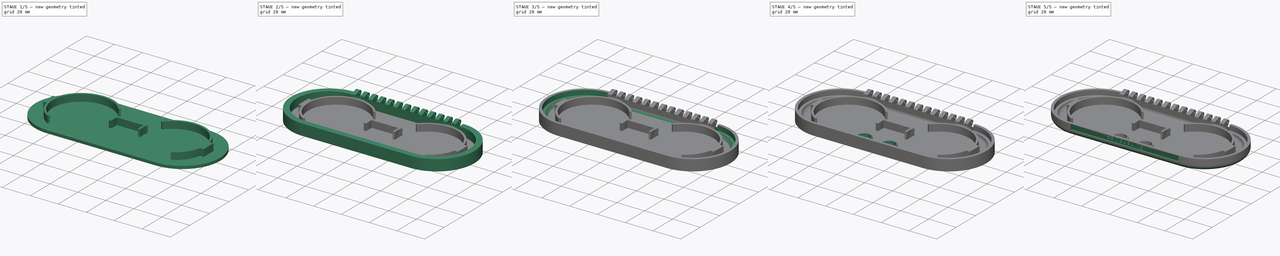
[diagram: build sequence overview — one tinted view per stage of 5, left to right]
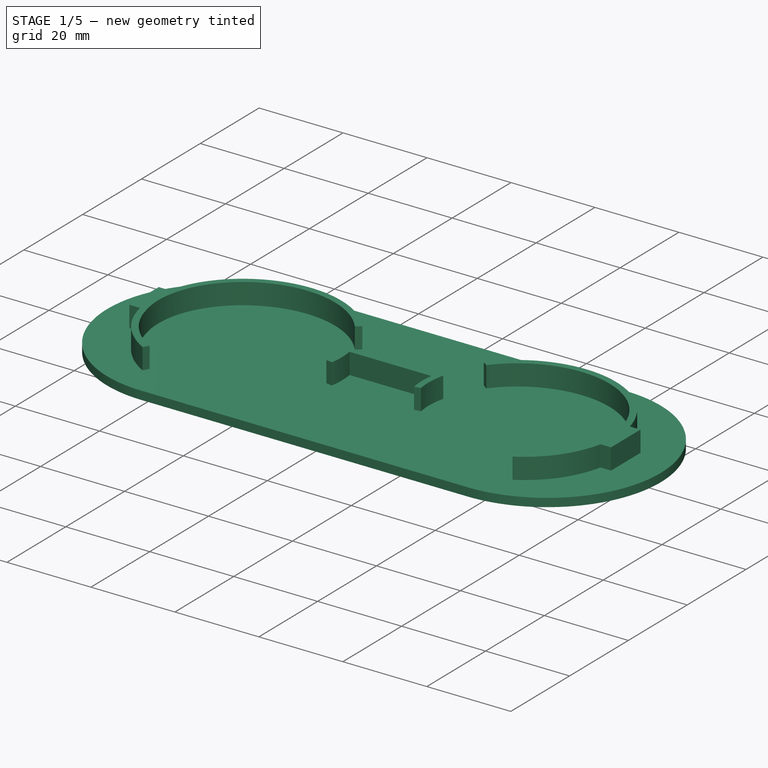
[diagram: stage 1 of 5 — iso view after this stage's code; geometry added in this stage tinted green]
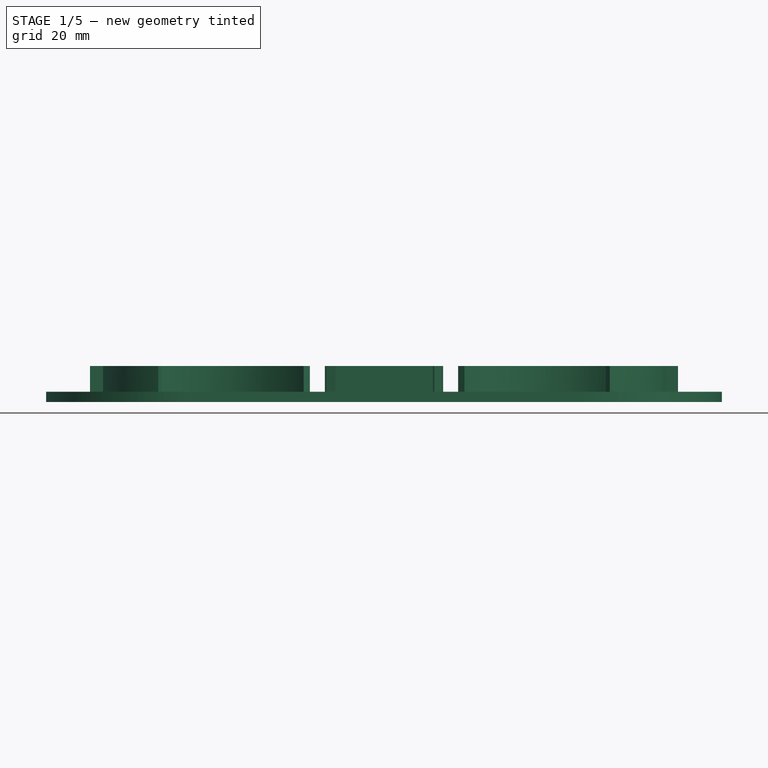
[diagram: stage 1 of 5 — front view after this stage's code; geometry added in this stage tinted green]
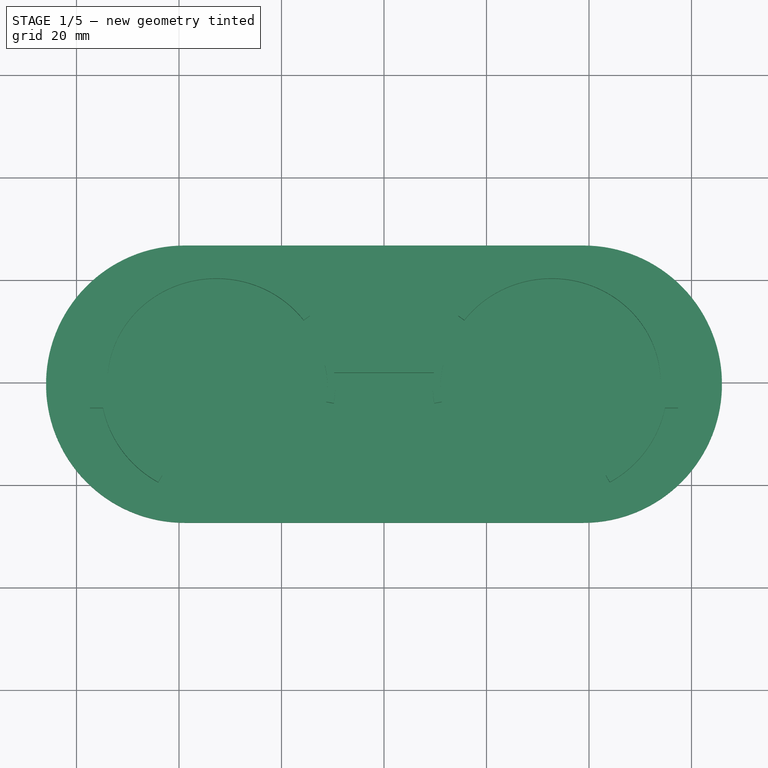
[diagram: stage 1 of 5 — top view after this stage's code; geometry added in this stage tinted green]
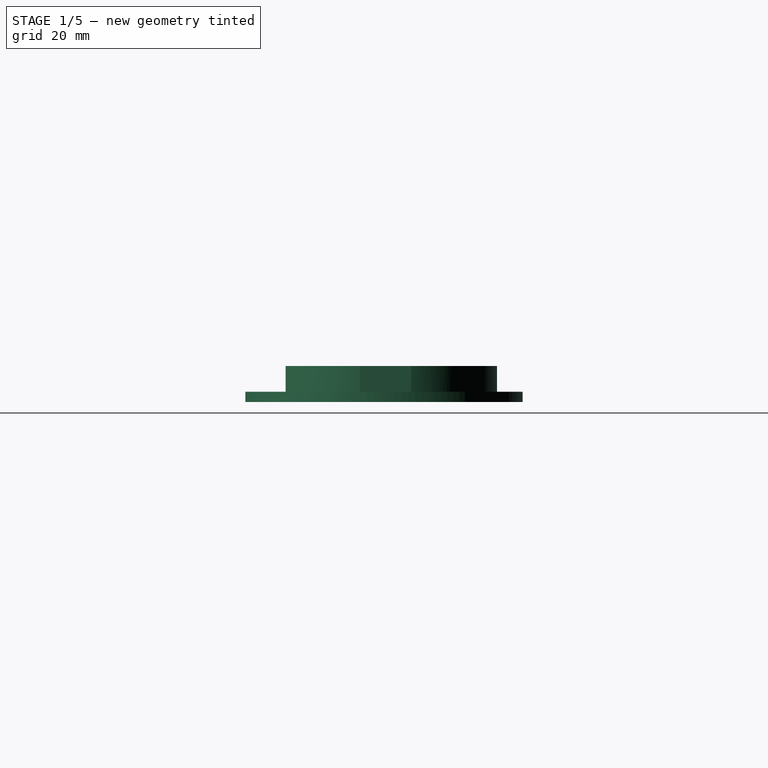
[diagram: stage 1 of 5 — right view after this stage's code; geometry added in this stage tinted green]
FCSTD DOCUMENT  (FreeCAD 1.1R39673 (Git))
Label: clip-on_shades_case_top
License: All rights reserved
LicenseURL: http://en.wikipedia.org/wiki/All_rights_reserved
objects: Sketcher::SketchObject×13, PartDesign::Pocket×6, PartDesign::Pad×5, PartDesign::AdditivePipe×2, PartDesign::Mirrored×2, PartDesign::SubtractivePipe×2, App::Point×1, Part::DatumPlane×1, Part::Part2DObjectPython×1, PartDesign::Body×1
note: 77 computed .brp shape members not serialized (recipe doc carries the construction recipe); baked Part::Feature solids carry a one-line shape summary decoded from their .brp

FEATURE [Sketcher::SketchObject] Sketch  label="Frame back face"
  ArcFitTolerance = 1e-06
  AttachmentSupport = -> [Origin]
  ExternalTypes = [0]
  FullyConstrained = true
  MakeInternals = false
  MapMode = 5
  sketch-geometry (53):
    g0: Ellipse CenterX=-32.7 CenterY=0 CenterZ=0 NormalX=0 NormalY=0 NormalZ=1 MajorRadius=20 MinorRadius=19 AngleXU=0
    g1: LineSegment [constr] StartX=-12.7 StartY=0 StartZ=0 EndX=-52.7 EndY=0 EndZ=0
    g2: LineSegment [constr] StartX=-32.7 StartY=19 StartZ=0 EndX=-32.7 EndY=-19 EndZ=0
    g3: GeomPoint [constr] X=-26.455 Y=0 Z=0
    g4: GeomPoint [constr] X=-38.945 Y=0 Z=0
    g5: Ellipse CenterX=32.7 CenterY=0 CenterZ=0 NormalX=0 NormalY=0 NormalZ=1 MajorRadius=20 MinorRadius=19 AngleXU=0
    g6: LineSegment [constr] StartX=52.7 StartY=0 StartZ=0 EndX=12.7 EndY=0 EndZ=0
    g7: LineSegment [constr] StartX=32.7 StartY=19 StartZ=0 EndX=32.7 EndY=-19 EndZ=0
    g8: GeomPoint [constr] X=38.945 Y=0 Z=0
    g9: GeomPoint [constr] X=26.455 Y=0 Z=0
    g10: ArcOfEllipse CenterX=-32.7 CenterY=0 CenterZ=0 NormalX=0 NormalY=0 NormalZ=1 MajorRadius=22 MinorRadius=21 AngleXU=0 StartAngle=0.410218 EndAngle=6.59162
    g11: LineSegment [constr] StartX=-10.7 StartY=0 StartZ=0 EndX=-54.7 EndY=0 EndZ=0
    g12: LineSegment [constr] StartX=-32.7 StartY=21 StartZ=0 EndX=-32.7 EndY=-21 EndZ=0
    g13: GeomPoint [constr] X=-26.1426 Y=0 Z=0
    g14: GeomPoint [constr] X=-39.2574 Y=0 Z=0
    g15: ArcOfEllipse CenterX=32.7 CenterY=0 CenterZ=0 NormalX=0 NormalY=0 NormalZ=1 MajorRadius=22 MinorRadius=21 AngleXU=0 StartAngle=2.83315 EndAngle=9.01456
    g16: LineSegment [constr] StartX=54.7 StartY=0 StartZ=0 EndX=10.7 EndY=0 EndZ=0
    g17: LineSegment [constr] StartX=32.7 StartY=21 StartZ=0 EndX=32.7 EndY=-21 EndZ=0
    g18: GeomPoint [constr] X=39.2574 Y=0 Z=0
    g19: GeomPoint [constr] X=26.1426 Y=0 Z=0
    g20: LineSegment StartX=-11.7382 StartY=6.375 StartZ=0 EndX=11.7382 EndY=6.375 EndZ=0
    g21: LineSegment StartX=-12.5253 StartY=8.375 StartZ=0 EndX=12.5253 EndY=8.375 EndZ=0
    g22: Circle CenterX=-32.7 CenterY=0 CenterZ=0 NormalX=0 NormalY=0 NormalZ=1 AngleXU=0 Radius=0.5
    g23: Circle CenterX=32.7 CenterY=0 CenterZ=0 NormalX=0 NormalY=0 NormalZ=1 AngleXU=0 Radius=0.5
    g24: ArcOfEllipse CenterX=-32.7 CenterY=0 CenterZ=0 NormalX=0 NormalY=0 NormalZ=1 MajorRadius=22.5998 MinorRadius=21.6 AngleXU=-3.14159 StartAngle=1.23602 EndAngle=2.77773
    g25: LineSegment [constr] StartX=-55.2998 StartY=-8e-16 StartZ=0 EndX=-10.1002 EndY=8e-16 EndZ=0
    g26: LineSegment [constr] StartX=-32.7 StartY=-21.6 StartZ=0 EndX=-32.7 EndY=21.6 EndZ=0
    g27: GeomPoint [constr] X=-39.3475 Y=-8e-16 Z=0
    g28: GeomPoint [constr] X=-26.0525 Y=2e-16 Z=0
    g29: LineSegment [constr] StartX=-32.7 StartY=-21.6 StartZ=0 EndX=-32.7 EndY=-21 EndZ=0
    g30: LineSegment [constr] StartX=-11.5798 StartY=-7.68711 StartZ=0 EndX=-12.1437 EndY=-7.48189 EndZ=0
    g31: LineSegment [constr] StartX=-40.1253 StartY=-20.4009 StartZ=0 EndX=-32.7 EndY=0 EndZ=0
    g32: LineSegment [constr] StartX=-32.7 StartY=0 StartZ=0 EndX=-12.1437 EndY=-7.48189 EndZ=0
    g33: ArcOfEllipse CenterX=-32.7 CenterY=0 CenterZ=0 NormalX=0 NormalY=0 NormalZ=1 MajorRadius=22.5202 MinorRadius=20.2728 AngleXU=-0.218418 StartAngle=6.13825 EndAngle=6.84301
    g34: LineSegment [constr] StartX=-10.7149 StartY=-4.87979 StartZ=0 EndX=-54.6851 EndY=4.87979 EndZ=0
    g35: LineSegment [constr] StartX=-28.3072 StartY=19.7911 StartZ=0 EndX=-37.0928 EndY=-19.7911 EndZ=0
    g36: GeomPoint [constr] X=-23.1262 Y=-2.125 Z=0
    g37: GeomPoint [constr] X=-42.2738 Y=2.125 Z=0
    g38: LineSegment StartX=-54.0673 StartY=5 StartZ=0 EndX=-57.3673 EndY=5 EndZ=0
    g39: LineSegment StartX=-57.3673 StartY=5 StartZ=0 EndX=-57.3673 EndY=-5 EndZ=0
    g40: LineSegment StartX=-57.3673 StartY=-5 StartZ=0 EndX=-54.0673 EndY=-5 EndZ=0
    g41: ArcOfEllipse CenterX=-32.7 CenterY=0 CenterZ=0 NormalX=0 NormalY=0 NormalZ=1 MajorRadius=21.9875 MinorRadius=21.3764 AngleXU=-2.64858 StartAngle=6.01287 EndAngle=7.02592
    g42: LineSegment StartX=54.0673 StartY=5 StartZ=0 EndX=57.3673 EndY=5 EndZ=0
    g43: LineSegment StartX=57.3673 StartY=-5 StartZ=0 EndX=54.0673 EndY=-5 EndZ=0
    g44: LineSegment StartX=57.3673 StartY=5 StartZ=0 EndX=57.3673 EndY=-5 EndZ=0
    g45: ArcOfEllipse CenterX=32.7 CenterY=0 CenterZ=0 NormalX=0 NormalY=0 NormalZ=1 MajorRadius=22.5998 MinorRadius=21.6 AngleXU=-3.14159 StartAngle=0.36386 EndAngle=1.90557
    g46: LineSegment [constr] StartX=10.1002 StartY=-2e-15 StartZ=0 EndX=55.2998 EndY=2e-15 EndZ=0
    g47: LineSegment [constr] StartX=32.7 StartY=-21.6 StartZ=0 EndX=32.7 EndY=21.6 EndZ=0
    g48: GeomPoint [constr] X=26.0525 Y=-8e-16 Z=0
    g49: GeomPoint [constr] X=39.3475 Y=6e-16 Z=0
    g50: ArcOfEllipse CenterX=32.7 CenterY=0 CenterZ=0 NormalX=0 NormalY=0 NormalZ=1 MajorRadius=22.5202 MinorRadius=20.2728 AngleXU=-2.92318 StartAngle=5.72336 EndAngle=6.42812
    g51: ArcOfEllipse CenterX=32.7 CenterY=0 CenterZ=0 NormalX=0 NormalY=0 NormalZ=1 MajorRadius=21.9875 MinorRadius=21.3764 AngleXU=-0.493017 StartAngle=5.54045 EndAngle=6.5535
    g52: LineSegment StartX=-12.9108 StartY=9.175 StartZ=0 EndX=12.9108 EndY=9.175 EndZ=0
  constraints (89):
    c: InternalAlignment(g1-g4 -> g0) x4
    c: PointOnObject(g0,g-1)
    c: Horizontal(g1)
    c: DistanceX(g1,g1) = 40
    c: DistanceY(g2,g2) = 38
    c: InternalAlignment(g6-g9 -> g5) x4
    c: Horizontal(g6)
    c: Equal(g1,g6)
    c: Equal(g7,g2)
    c: Symmetric(g5,g0,g-2)
    c: DistanceX(g0,g5) = 65.4
    c: InternalAlignment(g11-g14 -> g10) x4
    c: Coincident(g10,g0)
    c: Horizontal(g11)
    c: DistanceX(g1,g11) = 2
    c: DistanceY(g12,g2) = 2
    c: InternalAlignment(g16-g19 -> g15) x4
    c: Symmetric(g0,g15,g-2)
    c: Horizontal(g16)
    c: Equal(g16,g11)
    c: Equal(g17,g12)
    c: Horizontal(g10,g15)
    c: Horizontal(g15,g10)
    c: Coincident(g20,g10)
    c: Coincident(g20,g15)
    c: Coincident(g21,g10)
    c: Coincident(g21,g15)
    c: Distance(g20,g21) = 2
    c: Distance(g-1,g20) = 6.375
    c: Coincident(g22,g0)
    c: Diameter(g22) = 1
    c: Equal(g22,g23)
    c: Symmetric(g22,g23,g-2)
    c: PointOnObject(g33,g10)
    c: PointOnObject(g50,g15)
    c: InternalAlignment(g25-g28 -> g24) x4
    c: Coincident(g24,g0)
    c: PointOnObject(g12,g26)
    c: Coincident(g29,g26)
    c: Distance(g29,g29) = 0.6
    c: Coincident(g29,g12)
    c: PointOnObject(g30,g10)
    c: PointOnObject(g0,g30)
    c: Equal(g29,g30)
    c: Coincident(g31,g0)
    c: Angle(g31,g2) = 0.349066
    c: Coincident(g32,g0)
    c: Perpendicular(g32,g31)
    c: Coincident(g30,g32)
    c: InternalAlignment(g34-g37 -> g33) x4
    c: Coincident(g33,g0)
    c: Tangent(g24,g33) = -1.5708
    c: Coincident(g24,g30)
    c: PointOnObject(g38,g10)
    c: Horizontal(g38)
    c: Coincident(g39,g38)
    c: Coincident(g40,g39)
    c: PointOnObject(g40,g10)
    c: Horizontal(g40)
    c: Symmetric(g39,g38,g-1)
    c: DistanceY(g39,g39) = 10
    c: DistanceX(g40,g40) = 3.3
    c: Tangent(g24,g41) = -1.5708
    c: Coincident(g40,g41)
    c: Coincident(g41,g0)
    c: Coincident(g24,g31)
    c: Symmetric(g38,g42,g-2)
    c: Symmetric(g38,g42,g-2)
    c: Symmetric(g39,g44,g-2)
    c: Symmetric(g39,g44,g-2)
    c: Symmetric(g40,g43,g-2)
    c: Symmetric(g40,g43,g-2)
    c: InternalAlignment(g46-g49 -> g45) x4
    c: Coincident(g45,g5)
    c: Vertical(g47)
    c: Equal(g45,g24)
    c: Horizontal(g24,g45)
    c: Horizontal(g24,g45)
    c: Coincident(g50,g15)
    c: Tangent(g45,g50) = -1.5708
    c: Coincident(g51,g23)
    c: Coincident(g43,g51)
    c: Tangent(g45,g51) = -1.5708
    c: PointOnObject(g33,g20)
    c: PointOnObject(g50,g20)
    c: PointOnObject(g52,g10)
    c: PointOnObject(g52,g15)
    c: Horizontal(g52)
    c: Distance(g52,g21) = 0.8
FEATURE [App::Point] Origin001  label="Origin"
  Role = Origin
FEATURE [Sketcher::SketchObject] Sketch001  label="Frame holder walls master sketch"
  ArcFitTolerance = 1e-06
  AttachmentSupport = -> [XY_Plane]
  ExternalGeometry = -> [Sketch]
  ExternalTypes = [0,0,0,0,0]
  FullyConstrained = true
  MakeInternals = false
  MapMode = 5
  sketch-geometry (101):
    g0: ArcOfEllipse CenterX=-32.7 CenterY=0 CenterZ=0 NormalX=0 NormalY=0 NormalZ=1 MajorRadius=22.75 MinorRadius=21.75 AngleXU=-3.14159 StartAngle=3.78154 EndAngle=6.05123
    g1: LineSegment [constr] StartX=-55.45 StartY=-2.9e-15 StartZ=0 EndX=-9.95 EndY=2.9e-15 EndZ=0
    g2: LineSegment [constr] StartX=-32.7 StartY=-21.75 StartZ=0 EndX=-32.7 EndY=21.75 EndZ=0
    g3: GeomPoint [constr] X=-39.3708 Y=-8e-16 Z=0
    g4: GeomPoint [constr] X=-26.0292 Y=8e-16 Z=0
    g5: LineSegment [constr] StartX=-32.7 StartY=21.75 StartZ=0 EndX=-32.7 EndY=21 EndZ=0
    g6: LineSegment [constr] StartX=-55.45 StartY=-2.9e-15 StartZ=0 EndX=-54.7 EndY=-2.9e-15 EndZ=0
    g7: LineSegment StartX=-57.3673 StartY=5 StartZ=0 EndX=-54.8407 EndY=5 EndZ=0
    g8: LineSegment StartX=-57.3673 StartY=5 StartZ=0 EndX=-57.3673 EndY=-5 EndZ=0
    g9: ArcOfEllipse [constr] CenterX=-32.7 CenterY=0 CenterZ=0 NormalX=0 NormalY=0 NormalZ=1 MajorRadius=21.9875 MinorRadius=21.3764 AngleXU=-2.64858 StartAngle=6.01287 EndAngle=7.02592
    g10: LineSegment [constr] StartX=-52.069 StartY=-10.4064 StartZ=0 EndX=-13.331 EndY=10.4064 EndZ=0
    g11: LineSegment [constr] StartX=-22.5829 StartY=-18.8306 StartZ=0 EndX=-42.8171 EndY=18.8306 EndZ=0
    g12: GeomPoint [constr] X=-37.235 Y=-2.43651 Z=0
    g13: GeomPoint [constr] X=-28.165 Y=2.43651 Z=0
    g14: LineSegment [constr] StartX=-32.7 StartY=0 StartZ=0 EndX=-40.1253 EndY=-20.4009 EndZ=0
    g15: ArcOfEllipse CenterX=-32.7 CenterY=0 CenterZ=0 NormalX=0 NormalY=0 NormalZ=1 MajorRadius=22.7375 MinorRadius=22.1264 AngleXU=-2.64858 StartAngle=6.00523 EndAngle=6.84591
    g16: LineSegment [constr] StartX=-52.7297 StartY=-10.7614 StartZ=0 EndX=-12.6703 EndY=10.7614 EndZ=0
    g17: LineSegment [constr] StartX=-22.2279 StartY=-19.4913 StartZ=0 EndX=-43.1721 EndY=19.4913 EndZ=0
    g18: GeomPoint [constr] X=-37.3127 Y=-2.47829 Z=0
    g19: GeomPoint [constr] X=-28.0873 Y=2.47829 Z=0
    g20: LineSegment [constr] StartX=-52.7297 StartY=-10.7614 StartZ=0 EndX=-52.069 EndY=-10.4064 EndZ=0
    g21: LineSegment [constr] StartX=-22.5829 StartY=-18.8306 StartZ=0 EndX=-22.2279 EndY=-19.4913 EndZ=0
    g22: LineSegment StartX=-57.3673 StartY=-5 StartZ=0 EndX=-54.8344 EndY=-5 EndZ=0
    g23: LineSegment [constr] StartX=0 StartY=8.375 StartZ=0 EndX=0 EndY=7.625 EndZ=0
    g24: ArcOfEllipse [constr] CenterX=-32.7 CenterY=0 CenterZ=0 NormalX=0 NormalY=0 NormalZ=1 MajorRadius=22.5202 MinorRadius=20.2728 AngleXU=2.92318 StartAngle=2.99665 EndAngle=3.70142
    g25: LineSegment [constr] StartX=-54.6851 StartY=4.87979 StartZ=0 EndX=-10.7149 EndY=-4.87979 EndZ=0
    g26: LineSegment [constr] StartX=-37.0928 StartY=-19.7911 StartZ=0 EndX=-28.3072 EndY=19.7911 EndZ=0
    g27: GeomPoint [constr] X=-42.2738 Y=2.125 Z=0
    g28: GeomPoint [constr] X=-23.1262 Y=-2.125 Z=0
    g29: ArcOfEllipse CenterX=-32.7 CenterY=0 CenterZ=0 NormalX=0 NormalY=0 NormalZ=1 MajorRadius=23.2702 MinorRadius=21.0228 AngleXU=-0.218418 StartAngle=0.046637 EndAngle=0.329753
    g30: LineSegment [constr] StartX=-9.98268 StartY=-5.0423 StartZ=0 EndX=-55.4173 EndY=5.0423 EndZ=0
    g31: LineSegment [constr] StartX=-28.1447 StartY=20.5233 StartZ=0 EndX=-37.2553 EndY=-20.5233 EndZ=0
    g32: GeomPoint [constr] X=-22.9598 Y=-2.16192 Z=0
    g33: GeomPoint [constr] X=-42.4402 Y=2.16192 Z=0
    g34: LineSegment [constr] StartX=-10.7149 StartY=-4.87979 StartZ=0 EndX=-9.98268 EndY=-5.0423 EndZ=0
    g35: LineSegment [constr] StartX=-28.3072 StartY=19.7911 StartZ=0 EndX=-28.1447 EndY=20.5233 EndZ=0
    g36: LineSegment [constr] StartX=-32.7 StartY=0 StartZ=0 EndX=-11.5798 EndY=-7.68711 EndZ=0
    g37: ArcOfEllipse CenterX=32.7 CenterY=0 CenterZ=0 NormalX=0 NormalY=0 NormalZ=1 MajorRadius=22.75 MinorRadius=21.75 AngleXU=3.14159 StartAngle=3.37355 EndAngle=5.64324
    g38: LineSegment [constr] StartX=9.95 StartY=2.9e-15 StartZ=0 EndX=55.45 EndY=-2.9e-15 EndZ=0
    g39: LineSegment [constr] StartX=32.7 StartY=-21.75 StartZ=0 EndX=32.7 EndY=21.75 EndZ=0
    g40: GeomPoint [constr] X=26.0292 Y=8e-16 Z=0
    g41: GeomPoint [constr] X=39.3708 Y=-8e-16 Z=0
    g42: LineSegment StartX=57.3673 StartY=5 StartZ=0 EndX=54.8407 EndY=5 EndZ=0
    g43: LineSegment StartX=57.3673 StartY=5 StartZ=0 EndX=57.3673 EndY=-5 EndZ=0
    g44: LineSegment StartX=57.3673 StartY=-5 StartZ=0 EndX=54.8344 EndY=-5 EndZ=0
    g45: ArcOfEllipse CenterX=32.7 CenterY=0 CenterZ=0 NormalX=0 NormalY=0 NormalZ=1 MajorRadius=22.7375 MinorRadius=22.1264 AngleXU=-0.493017 StartAngle=5.72046 EndAngle=6.56115
    g46: LineSegment [constr] StartX=52.7297 StartY=-10.7614 StartZ=0 EndX=12.6703 EndY=10.7614 EndZ=0
    g47: LineSegment [constr] StartX=43.1721 StartY=19.4913 StartZ=0 EndX=22.2279 EndY=-19.4913 EndZ=0
    g48: GeomPoint [constr] X=37.3127 Y=-2.47829 Z=0
    g49: GeomPoint [constr] X=28.0873 Y=2.47829 Z=0
    g50: ArcOfEllipse CenterX=32.7 CenterY=0 CenterZ=0 NormalX=0 NormalY=0 NormalZ=1 MajorRadius=23.2702 MinorRadius=21.0228 AngleXU=-2.92318 StartAngle=5.95343 EndAngle=6.23655
    g51: LineSegment [constr] StartX=9.98268 StartY=-5.0423 StartZ=0 EndX=55.4173 EndY=5.0423 EndZ=0
    g52: LineSegment [constr] StartX=37.2553 StartY=-20.5233 StartZ=0 EndX=28.1447 EndY=20.5233 EndZ=0
    g53: GeomPoint [constr] X=22.9598 Y=-2.16192 Z=0
    g54: GeomPoint [constr] X=42.4402 Y=2.16192 Z=0
    g55: LineSegment StartX=-9.73158 StartY=1.875 StartZ=0 EndX=9.73158 EndY=1.875 EndZ=0
    g56: LineSegment [constr] StartX=-32.7 StartY=21.75 StartZ=0 EndX=-32.7 EndY=20.25 EndZ=0
    g57: LineSegment [constr] StartX=-55.45 StartY=-2.9e-15 StartZ=0 EndX=-53.95 EndY=-2.7e-15 EndZ=0
    g58: ArcOfEllipse CenterX=-32.7 CenterY=0 CenterZ=0 NormalX=0 NormalY=0 NormalZ=1 MajorRadius=21.25 MinorRadius=20.25 AngleXU=-3.14159 StartAngle=3.7831 EndAngle=6.50582
    g59: LineSegment [constr] StartX=-53.95 StartY=-1.5e-15 StartZ=0 EndX=-11.45 EndY=1.5e-15 EndZ=0
    g60: LineSegment [constr] StartX=-32.7 StartY=-20.25 StartZ=0 EndX=-32.7 EndY=20.25 EndZ=0
    g61: GeomPoint [constr] X=-39.142 Y=-5e-16 Z=0
    g62: GeomPoint [constr] X=-26.258 Y=5e-16 Z=0
    g63: LineSegment StartX=-15.6746 StartY=12.1176 StartZ=0 EndX=-14.4516 EndY=12.9881 EndZ=0
    g64: ArcOfEllipse CenterX=-32.7 CenterY=0 CenterZ=0 NormalX=0 NormalY=0 NormalZ=1 MajorRadius=21.2375 MinorRadius=20.6264 AngleXU=-2.64858 StartAngle=6.03057 EndAngle=6.8468
    g65: LineSegment [constr] StartX=-51.4083 StartY=-10.0514 StartZ=0 EndX=-13.9917 EndY=10.0514 EndZ=0
    g66: LineSegment [constr] StartX=-22.9378 StartY=-18.17 StartZ=0 EndX=-42.4622 EndY=18.17 EndZ=0
    g67: GeomPoint [constr] X=-37.1558 Y=-2.39399 Z=0
    g68: GeomPoint [constr] X=-28.2442 Y=2.39399 Z=0
    g69: LineSegment [constr] StartX=-52.7297 StartY=-10.7614 StartZ=0 EndX=-51.4083 EndY=-10.0514 EndZ=0
    g70: LineSegment [constr] StartX=-22.2279 StartY=-19.4913 StartZ=0 EndX=-22.9378 EndY=-18.17 EndZ=0
    g71: LineSegment StartX=-44.0543 StartY=-19.5005 StartZ=0 EndX=-43.2994 EndY=-18.204 EndZ=0
    g72: LineSegment StartX=-53.4255 StartY=-4.47128 StartZ=0 EndX=-53.2545 EndY=-5.19113 EndZ=0
    g73: ArcOfEllipse CenterX=-32.7 CenterY=0 CenterZ=0 NormalX=0 NormalY=0 NormalZ=1 MajorRadius=21.7702 MinorRadius=19.5228 AngleXU=-0.218418 StartAngle=0.0469825 EndAngle=0.415387
    g74: LineSegment [constr] StartX=-11.447 StartY=-4.71728 StartZ=0 EndX=-53.953 EndY=4.71728 EndZ=0
    g75: LineSegment [constr] StartX=-28.4697 StartY=19.0589 StartZ=0 EndX=-36.9303 EndY=-19.0589 EndZ=0
    g76: GeomPoint [constr] X=-23.2954 Y=-2.08742 Z=0
    g77: GeomPoint [constr] X=-42.1046 Y=2.08742 Z=0
    g78: LineSegment [constr] StartX=-11.447 StartY=-4.71728 StartZ=0 EndX=-9.98268 EndY=-5.0423 EndZ=0
    g79: LineSegment [constr] StartX=-28.1447 StartY=20.5233 StartZ=0 EndX=-28.4697 EndY=19.0589 EndZ=0
    g80: LineSegment StartX=-11.2718 StartY=-3.81696 StartZ=0 EndX=-9.79501 EndY=-4.08002 EndZ=0
    g81: LineSegment StartX=-11.5473 StartY=3.375 StartZ=0 EndX=11.5473 EndY=3.375 EndZ=0
    g82: ArcOfEllipse CenterX=32.7 CenterY=0 CenterZ=0 NormalX=0 NormalY=0 NormalZ=1 MajorRadius=21.25 MinorRadius=20.25 AngleXU=-1e-16 StartAngle=6.06055 EndAngle=8.78327
    g83: LineSegment [constr] StartX=53.95 StartY=-2.9e-15 StartZ=0 EndX=11.45 EndY=2.9e-15 EndZ=0
    g84: LineSegment [constr] StartX=32.7 StartY=20.25 StartZ=0 EndX=32.7 EndY=-20.25 EndZ=0
    g85: GeomPoint [constr] X=39.142 Y=-9e-16 Z=0
    g86: GeomPoint [constr] X=26.258 Y=9e-16 Z=0
    g87: LineSegment StartX=14.4516 StartY=12.9881 StartZ=0 EndX=15.6746 EndY=12.1176 EndZ=0
    g88: ArcOfEllipse CenterX=32.7 CenterY=0 CenterZ=0 NormalX=0 NormalY=0 NormalZ=1 MajorRadius=21.2375 MinorRadius=20.6264 AngleXU=-0.493017 StartAngle=5.71957 EndAngle=6.5358
    g89: LineSegment [constr] StartX=51.4083 StartY=-10.0514 StartZ=0 EndX=13.9917 EndY=10.0514 EndZ=0
    g90: LineSegment [constr] StartX=42.4622 StartY=18.17 StartZ=0 EndX=22.9378 EndY=-18.17 EndZ=0
    g91: GeomPoint [constr] X=37.1558 Y=-2.39399 Z=0
    g92: GeomPoint [constr] X=28.2442 Y=2.39399 Z=0
    g93: LineSegment StartX=53.4255 StartY=-4.47128 StartZ=0 EndX=53.2545 EndY=-5.19113 EndZ=0
    g94: LineSegment StartX=43.2994 StartY=-18.204 StartZ=0 EndX=44.0543 EndY=-19.5005 EndZ=0
    g95: ArcOfEllipse CenterX=32.7 CenterY=0 CenterZ=0 NormalX=0 NormalY=0 NormalZ=1 MajorRadius=21.7702 MinorRadius=19.5228 AngleXU=0.218418 StartAngle=2.72621 EndAngle=3.09461
    g96: LineSegment [constr] StartX=53.953 StartY=4.71728 StartZ=0 EndX=11.447 EndY=-4.71728 EndZ=0
    g97: LineSegment [constr] StartX=28.4697 StartY=19.0589 StartZ=0 EndX=36.9303 EndY=-19.0589 EndZ=0
    g98: GeomPoint [constr] X=42.1046 Y=2.08742 Z=0
    g99: GeomPoint [constr] X=23.2954 Y=-2.08742 Z=0
    g100: LineSegment StartX=9.79501 StartY=-4.08002 StartZ=0 EndX=11.2718 EndY=-3.81696 EndZ=0
  constraints (151):
    c: InternalAlignment(g1-g4 -> g0) x4
    c: Coincident(g0,g-4)
    c: Vertical(g2)
    c: Coincident(g5,g2)
    c: PointOnObject(g5,g-3)
    c: Vertical(g5)
    c: Distance(g5,g5) = 0.75
    c: Coincident(g6,g1)
    c: PointOnObject(g6,g-3)
    c: Equal(g6,g5)
    c: Horizontal(g6)
    c: Coincident(g7,g-5)
    c: Coincident(g7,g0)
    c: Horizontal(g7)
    c: Coincident(g8,g7)
    c: Coincident(g8,g-5)
    c: InternalAlignment(g10-g13 -> g9) x4
    c: Coincident(g9,g0)
    c: Equal(g-6,g9)
    c: Coincident(g9,g-6)
    c: Coincident(g14,g0)
    c: Coincident(g14,g-6)
    c: PointOnObject(g9,g14)
    c: InternalAlignment(g16-g19 -> g15) x4
    c: Coincident(g15,g0)
    c: Coincident(g20,g16)
    c: Coincident(g20,g10)
    c: Equal(g20,g5)
    c: Parallel(g16,g10)
    c: Coincident(g21,g11)
    c: Coincident(g21,g17)
    c: Equal(g21,g5)
    c: Coincident(g22,g8)
    c: Coincident(g22,g15)
    c: Horizontal(g22)
    c: Distance(g15,g14) = 4
    c: Vertical(g23)
    c: PointOnObject(g23,g-2)
    c: Equal(g23,g5)
    c: Horizontal(g23,g-3)
    c: InternalAlignment(g25-g28 -> g24) x4
    c: Coincident(g24,g0)
    c: Coincident(g24,g-4)
    c: Equal(g-4,g24)
    c: Horizontal(g-4,g24)
    c: InternalAlignment(g30-g33 -> g29) x4
    c: Coincident(g29,g0)
    c: Parallel(g30,g25)
    c: Coincident(g34,g25)
    c: Coincident(g34,g30)
    c: Equal(g34,g5)
    c: Coincident(g35,g26)
    c: Coincident(g35,g31)
    c: Equal(g5,g35)
    c: Coincident(g36,g0)
    c: Coincident(g36,g24)
    c: Distance(g29,g36) = 4
    c: InternalAlignment(g38-g41 -> g37) x4
    c: Symmetric(g37,g0,g-2)
    c: Symmetric(g1,g38,g-2)
    c: Horizontal(g39,g2)
    c: Horizontal(g0,g37)
    c: Symmetric(g7,g42,g-2)
    c: Symmetric(g7,g42,g-2)
    c: Symmetric(g8,g43,g-2)
    c: Symmetric(g8,g43,g-2)
    c: Symmetric(g22,g44,g-2)
    c: Symmetric(g22,g44,g-2)
    c: PointOnObject(g37,g42)
    c: InternalAlignment(g46-g49 -> g45) x4
    c: Coincident(g45,g37)
    c: Equal(g45,g15)
    c: Coincident(g45,g44)
    c: Horizontal(g15,g45)
    c: InternalAlignment(g51-g54 -> g50) x4
    c: Coincident(g50,g37)
    c: Equal(g50,g29)
    c: Coincident(g55,g29)
    c: Symmetric(g29,g55,g-2)
    c: Coincident(g50,g55)
    c: Horizontal(g29,g50)
    c: Coincident(g56,g2)
    c: Distance(g56,g56) = 1.5
    c: PointOnObject(g56,g2)
    c: Coincident(g57,g1)
    c: Equal(g57,g56)
    c: PointOnObject(g57,g1)
    c: InternalAlignment(g59-g62 -> g58) x4
    c: Coincident(g58,g0)
    c: Coincident(g56,g60)
    c: Vertical(g57,g59)
    c: Coincident(g63,g58)
    c: Coincident(g63,g0)
    c: PointOnObject(g0,g63)
    c: InternalAlignment(g65-g68 -> g64) x4
    c: Coincident(g64,g0)
    c: Coincident(g69,g16)
    c: Coincident(g69,g65)
    c: Equal(g69,g56)
    c: Parallel(g65,g10)
    c: Coincident(g70,g17)
    c: Coincident(g70,g66)
    c: Equal(g70,g56)
    c: Coincident(g71,g15)
    c: Coincident(g71,g64)
    c: PointOnObject(g0,g71)
    c: Tangent(g64,g72) = -1.5708
    c: Tangent(g58,g72) = -1.5708
    c: InternalAlignment(g74-g77 -> g73) x4
    c: Coincident(g73,g0)
    c: Coincident(g78,g74)
    c: Coincident(g78,g30)
    c: Equal(g78,g56)
    c: Parallel(g78,g25)
    c: Coincident(g79,g31)
    c: Coincident(g79,g75)
    c: Equal(g79,g56)
    c: Coincident(g80,g73)
    c: Coincident(g80,g29)
    c: PointOnObject(g0,g80)
    c: Coincident(g81,g73)
    c: Symmetric(g81,g73,g-2)
    c: InternalAlignment(g83-g86 -> g82) x4
    c: Coincident(g82,g37)
    c: Vertical(g84)
    c: Equal(g82,g58)
    c: Coincident(g87,g37)
    c: Coincident(g87,g82)
    c: PointOnObject(g37,g87)
    c: Horizontal(g58,g82)
    c: InternalAlignment(g89-g92 -> g88) x4
    c: Coincident(g88,g37)
    c: Parallel(g46,g89)
    c: Equal(g64,g88)
    c: Coincident(g93,g82)
    c: Coincident(g88,g93)
    c: Horizontal(g88,g64)
    c: Coincident(g94,g88)
    c: Coincident(g94,g45)
    c: PointOnObject(g37,g94)
    c: InternalAlignment(g96-g99 -> g95) x4
    c: Coincident(g95,g37)
    c: Parallel(g96,g51)
    c: Equal(g73,g95)
    c: PointOnObject(g95,g81)
    c: Coincident(g100,g50)
    c: Coincident(g100,g95)
    c: PointOnObject(g37,g100)
    c: Distance(g55,g81) = 1.5
    c: Distance(g24,g81) = 3
    c: Distance(g-7,g63) = 4
FEATURE [PartDesign::Pad] Pad  label="Center frame holder wall"
  Direction = (0,0,1)
  Length = 5
  Length2 = 10
  Profile = -> Sketch001 [Edge17,Edge18,Edge12,Vertex12,Edge11,Edge13,Edge14,Vertex15,Edge16,Edge15]
  ReferenceAxis = -> Sketch001 [N_Axis]
  Refine = true
  Reversed = true
  Suppressed = false
  Type = 0
FEATURE [Sketcher::SketchObject] Sketch002
  ArcFitTolerance = 1e-06
  AttachmentOffset = pos=(0,0,0) rot=(0,0,1;3.14159rad)
  AttachmentSupport = -> [Pad]
  ExternalTypes = [0,0,0]
  FullyConstrained = true
  MakeInternals = false
  MapMode = 5
  Placement = pos=(0,0,-5) rot=(0,-1,0;3.14159rad)
  sketch-geometry (11):
    g0: LineSegment StartX=-38.8898 StartY=22.75 StartZ=0 EndX=38.8898 EndY=22.75 EndZ=0
    g1: LineSegment StartX=-38.8898 StartY=-23.35 StartZ=0 EndX=38.8898 EndY=-23.35 EndZ=0
    g2: ArcOfCircle CenterX=38.8898 CenterY=-0.3 CenterZ=0 NormalX=0 NormalY=0 NormalZ=1 AngleXU=0 Radius=23.05 StartAngle=4.71239 EndAngle=7.85398
    g3: ArcOfCircle CenterX=-38.8898 CenterY=-0.3 CenterZ=0 NormalX=0 NormalY=0 NormalZ=1 AngleXU=0 Radius=23.05 StartAngle=1.5708 EndAngle=4.71239
    g4: ArcOfCircle CenterX=38.8898 CenterY=-0.3 CenterZ=0 NormalX=0 NormalY=0 NormalZ=1 AngleXU=0 Radius=27.05 StartAngle=4.71239 EndAngle=7.85398
    g5: ArcOfCircle CenterX=-38.8898 CenterY=-0.3 CenterZ=0 NormalX=0 NormalY=0 NormalZ=1 AngleXU=0 Radius=27.05 StartAngle=1.5708 EndAngle=4.71239
    g6: LineSegment StartX=-38.8898 StartY=26.75 StartZ=0 EndX=38.8898 EndY=26.75 EndZ=0
    g7: LineSegment StartX=-38.8898 StartY=-27.35 StartZ=0 EndX=38.8898 EndY=-27.35 EndZ=0
    g8: LineSegment [constr] StartX=32.7 StartY=22.75 StartZ=0 EndX=32.7 EndY=21.75 EndZ=0
    g9: LineSegment [constr] StartX=32.7 StartY=-22.35 StartZ=0 EndX=32.7 EndY=-23.35 EndZ=0
    g10: LineSegment [constr] StartX=-60.3673 StartY=7.5 StartZ=0 EndX=-60.5553 EndY=7.56827 EndZ=0
  constraints (35):
    c: Symmetric(g0,g0,g-2)
    c: Symmetric(g1,g1,g-2)
    c: Equal(g1,g0)
    c: Coincident(g0,g2)
    c: Coincident(g2,g1)
    c: Vertical(g2,g0)
    c: Coincident(g0,g3)
    c: Coincident(g3,g1)
    c: Vertical(g3,g0)
    c: Coincident(g4,g2)
    c: Vertical(g2,g4)
    c: Vertical(g1,g4)
    c: Coincident(g5,g3)
    c: Vertical(g3,g5)
    c: Vertical(g3,g5)
    c: Coincident(g6,g5)
    c: Coincident(g6,g4)
    c: Horizontal(g6)
    c: Coincident(g5,g7)
    c: Coincident(g4,g7)
    c: Distance(g6,g0) = 4
    c: PointOnObject(g8,g0)
    c: PointOnObject(g8,g-4)
    c: PointOnObject(g-4,g8)
    c: Vertical(g8)
    c: Distance(g8,g8) = 1
    c: PointOnObject(g9,g-3)
    c: PointOnObject(g9,g1)
    c: Vertical(g9)
    c: PointOnObject(g-4,g9)
    c: Equal(g9,g8)
    c: Coincident(g10,g-5)
    c: PointOnObject(g10,g3)
    c: PointOnObject(g3,g10)
    c: Distance(g10,g10) = 0.2
FEATURE [PartDesign::Pad] Pad001  label="Case bottom"
  BaseFeature = -> Pad
  Direction = (0,0,-1)
  Length = 2
  Length2 = 10
  Profile = -> Sketch002 [Edge5,Edge8,Edge7,Edge6]
  ReferenceAxis = -> Sketch002 [N_Axis]
  Refine = true
  Suppressed = false
  Type = 0
FEATURE [Sketcher::SketchObject] Sketch010
  ArcFitTolerance = 1e-06
  AttachmentSupport = -> [YZ_Plane]
  ExternalGeometry = -> [Sketch002]
  ExternalTypes = [0]
  FullyConstrained = true
  MakeInternals = false
  MapMode = 5
  Placement = pos=(0,0,0) rot=(0.57735,0.57735,0.57735;2.0944rad)
  sketch-geometry (3):
    g0: LineSegment StartX=-23.35 StartY=-5 StartZ=0 EndX=-23.35 EndY=-2.6 EndZ=0
    g1: LineSegment StartX=-23.35 StartY=-5 StartZ=0 EndX=-20.95 EndY=-5 EndZ=0
    g2: ArcOfCircle CenterX=-20.95 CenterY=-2.6 CenterZ=0 NormalX=0 NormalY=0 NormalZ=1 AngleXU=0 Radius=2.4 StartAngle=3.14159 EndAngle=4.71239
  constraints (10):
    c: Coincident(g0,g-3)
    c: Coincident(g1,g0)
    c: Horizontal(g1)
    c: Vertical(g0)
    c: Equal(g1,g0)
    c: Radius(g2) = 2.4
    c: Coincident(g0,g2)
    c: Horizontal(g0,g2)
    c: Vertical(g1,g2)
    c: Vertical(g2,g1)
FEATURE [PartDesign::Pad] Pad005  label="Side frame holder walls"
  BaseFeature = -> Pad001
  Direction = (0,0,1)
  Length = 10
  Length2 = 10
  Profile = -> Sketch001 [Edge6,Edge8,Edge9,Edge10,Edge1,Edge2,Edge3,Edge4,Edge5,Edge7,Edge19,Edge20,Edge28,Edge27,Edge21,Edge22,Edge26,Edge23,Edge24,Edge25]
  ReferenceAxis = -> Sketch001 [N_Axis]
  Refine = true
  Suppressed = false
  Type = 3
  UpToFace = -> Pad001 [Face5]
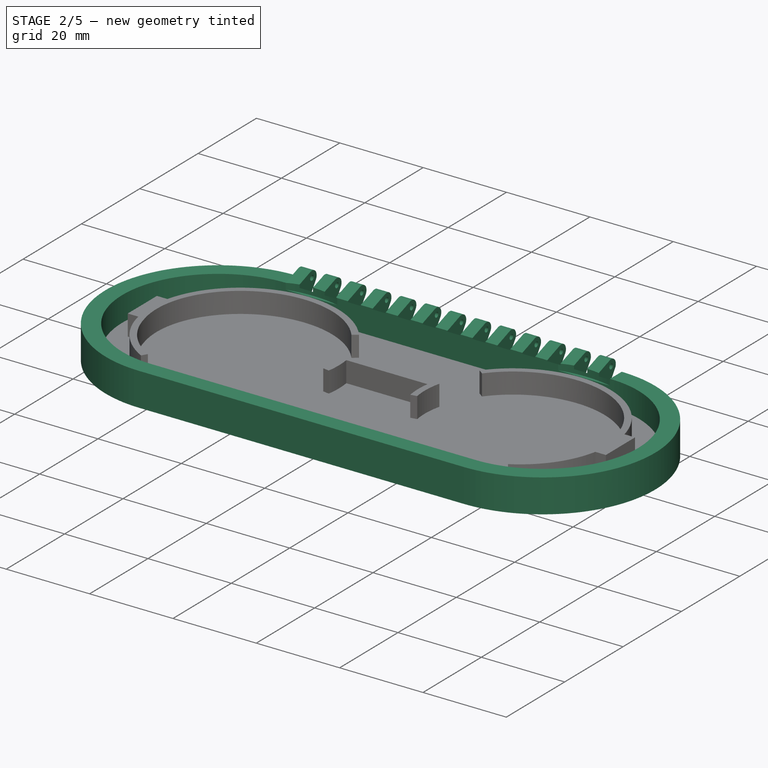
[diagram: stage 2 of 5 — iso view after this stage's code; geometry added in this stage tinted green]
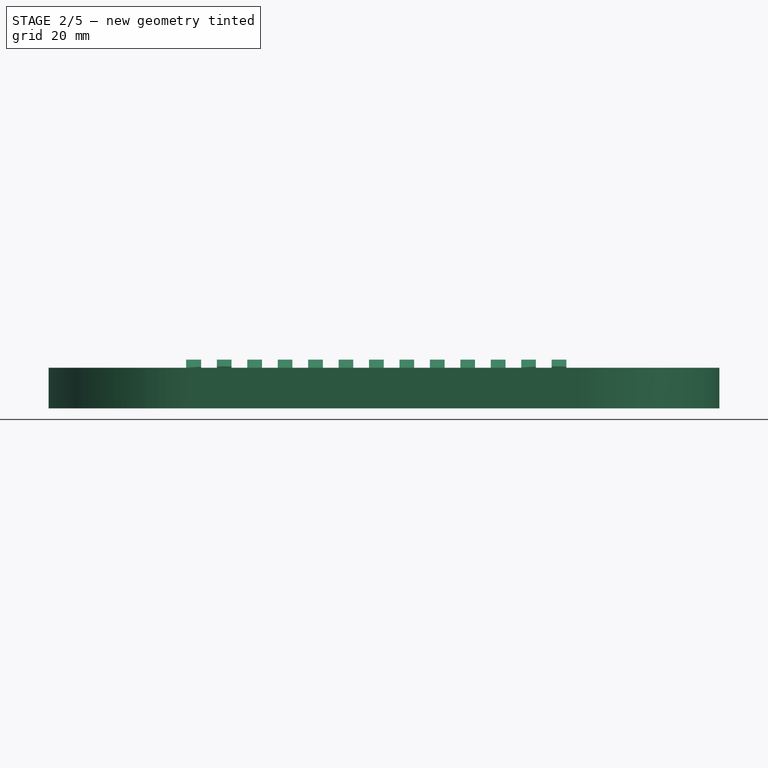
[diagram: stage 2 of 5 — front view after this stage's code; geometry added in this stage tinted green]
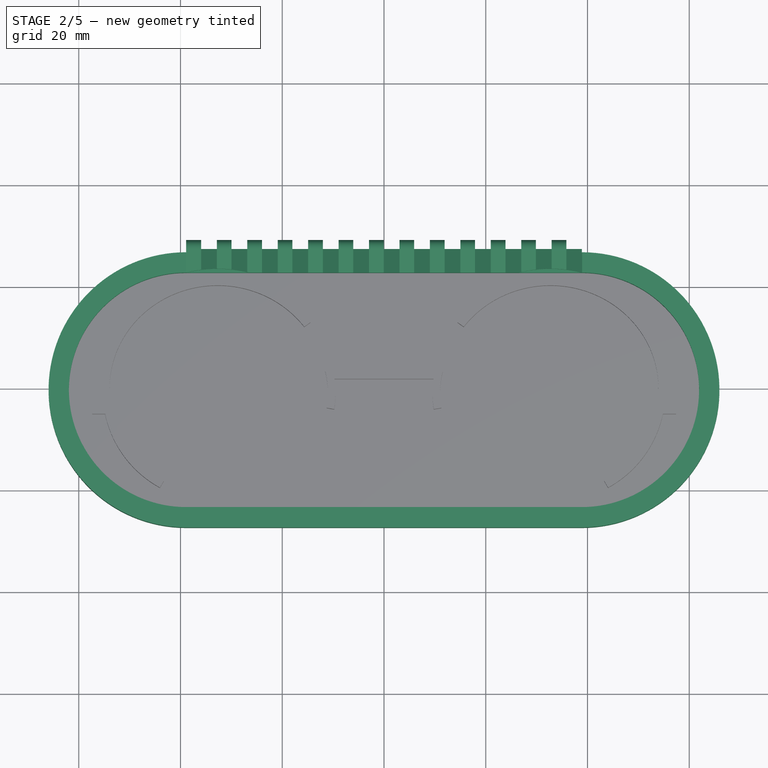
[diagram: stage 2 of 5 — top view after this stage's code; geometry added in this stage tinted green]
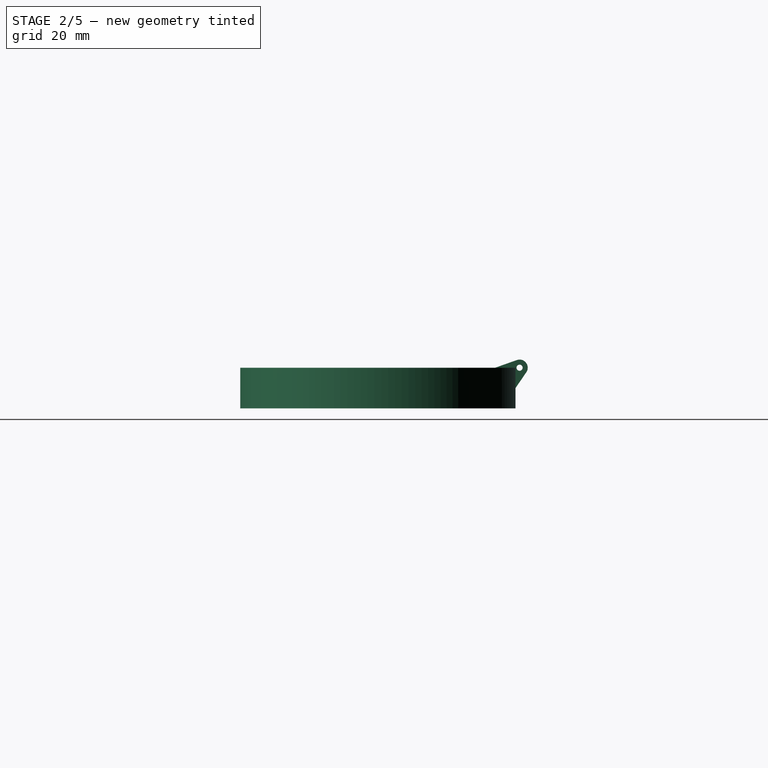
[diagram: stage 2 of 5 — right view after this stage's code; geometry added in this stage tinted green]
FEATURE [PartDesign::Pad] Pad002  label="Case walls"
  BaseFeature = -> Pad005
  Direction = (0,0,-1)
  Length = 6
  Length2 = 10
  Profile = -> Sketch002
  ReferenceAxis = -> Sketch002 [N_Axis]
  Refine = true
  Reversed = true
  Suppressed = false
  Type = 0
FEATURE [Sketcher::SketchObject] Sketch004
  ArcFitTolerance = 1e-06
  AttachmentSupport = -> [YZ_Plane]
  ExternalGeometry = -> [Pad002]
  ExternalTypes = [0,0]
  FullyConstrained = true
  MakeInternals = false
  MapMode = 5
  Placement = pos=(0,0,0) rot=(0.57735,0.57735,0.57735;2.0944rad)
  sketch-geometry (6):
    g0: Circle CenterX=27.55 CenterY=1 CenterZ=0 NormalX=0 NormalY=0 NormalZ=1 AngleXU=0 Radius=0.6
    g1: ArcOfCircle CenterX=27.55 CenterY=1 CenterZ=0 NormalX=0 NormalY=0 NormalZ=1 AngleXU=0 Radius=1.6 StartAngle=5.68273 EndAngle=8.19382
    g2: LineSegment StartX=22.75 StartY=1 StartZ=0 EndX=27.0167 EndY=2.50849 EndZ=0
    g3: LineSegment StartX=28.8701 StartY=0.0959744 StartZ=0 EndX=26.75 EndY=-3 EndZ=0
    g4: LineSegment [constr] StartX=26.75 StartY=1 StartZ=0 EndX=26.95 EndY=1 EndZ=0
    g5: LineSegment StartX=26.75 StartY=-3 StartZ=0 EndX=22.75 EndY=1 EndZ=0
  constraints (16):
    c: Coincident(g1,g0)
    c: Diameter(g0) = 1.2
    c: PointOnObject(g4,g0)
    c: Horizontal(g4)
    c: PointOnObject(g0,g4)
    c: DistanceX(g4,g4) = 0.2
    c: Diameter(g1) = 3.2
    c: Tangent(g2,g1) = 1.5708
    c: Tangent(g3,g1) = 1.5708
    c: Vertical(g4,g3)
    c: Coincident(g5,g3)
    c: Coincident(g2,g5)
    c: Coincident(g-3,g2)
    c: Vertical(g3,g-4)
    c: DistanceY(g-4,g3) = 4
    c: Horizontal(g2,g4)
FEATURE [PartDesign::AdditivePipe] AdditivePipe  label="Hinge base"
  AuxilleryCurvelinear = true
  AuxillerySpineTangent = false
  BaseFeature = -> Pad002
  Binormal = (0,0,0)
  Mode = 0
  Profile = -> Sketch004
  Refine = true
  Spine = -> Pad002 [Edge7]
  SpineTangent = false
  Suppressed = false
  Transformation = 0
  Transition = 0
FEATURE [Sketcher::SketchObject] Sketch005  label="Hinge notches cutting path"
  ArcFitTolerance = 1e-06
  AttachmentSupport = -> [YZ_Plane]
  ExternalGeometry = -> [Sketch004]
  ExternalTypes = [0,0,0]
  FullyConstrained = true
  MakeInternals = false
  MapMode = 5
  Placement = pos=(0,0,0) rot=(0.57735,0.57735,0.57735;2.0944rad)
  sketch-geometry (6):
    g0: LineSegment [constr] StartX=27.55 StartY=1 StartZ=0 EndX=27.55 EndY=-3 EndZ=0
    g1: LineSegment [constr] StartX=26.2299 StartY=0.0959744 StartZ=0 EndX=28.35 EndY=-3 EndZ=0
    g2: LineSegment [constr] StartX=25.9875 StartY=0.0959744 StartZ=0 EndX=28.1076 EndY=-3 EndZ=0
    g3: LineSegment [constr] StartX=22.75 StartY=0.8 StartZ=0 EndX=27.4288 EndY=-2.00876 EndZ=0
    g4: LineSegment StartX=22.6617 StartY=0.852982 StartZ=0 EndX=29.08 EndY=-3 EndZ=0
    g5: LineSegment [constr] StartX=22.6617 StartY=0.852982 StartZ=0 EndX=22.75 EndY=1 EndZ=0
  constraints (19):
    c: Coincident(g0,g-3)
    c: Vertical(g0)
    c: Horizontal(g-4,g0)
    c: Symmetric(g-4,g1,g0)
    c: Symmetric(g-4,g1,g0)
    c: Horizontal(g2,g1)
    c: Horizontal(g1,g2)
    c: Parallel(g2,g1)
    c: Distance(g2,g1) = 0.2
    c: Vertical(g-5,g3)
    c: DistanceY(g3,g-5) = 0.2
    c: PointOnObject(g3,g-4)
    c: PointOnObject(g3,g2)
    c: PointOnObject(g3,g4)
    c: PointOnObject(g3,g4)
    c: Horizontal(g-4,g4)
    c: Coincident(g5,g4)
    c: Perpendicular(g4,g5)
    c: Coincident(g-5,g5)
FEATURE [Part::DatumPlane] Plane  label="Hinge notches cutting profile plane"
  AttachmentSupport = -> [Sketch005]
  MapMode = 7
  Placement = pos=(0,22.6617,0.852982) rot=(1,0,0;1.03014rad)
FEATURE [Sketcher::SketchObject] Sketch006
  ArcFitTolerance = 1e-06
  AttachmentSupport = -> [Plane]
  ExternalGeometry = -> [Sketch002]
  ExternalTypes = [0]
  FullyConstrained = true
  MakeInternals = false
  MapMode = 5
  Placement = pos=(0,22.6617,0.852982) rot=(1,0,0;1.03014rad)
  sketch-geometry (104):
    g0: LineSegment [constr] StartX=-38.8898 StartY=0 StartZ=0 EndX=-35.8983 EndY=0 EndZ=0
    g1: LineSegment StartX=-35.9483 StartY=0 StartZ=0 EndX=-32.8568 EndY=0 EndZ=0
    g2: LineSegment [constr] StartX=-32.9068 StartY=0 StartZ=0 EndX=-29.9153 EndY=0 EndZ=0
    g3: LineSegment StartX=-29.9653 StartY=0 StartZ=0 EndX=-26.8737 EndY=0 EndZ=0
    g4: LineSegment [constr] StartX=-26.9237 StartY=0 StartZ=0 EndX=-23.9322 EndY=0 EndZ=0
    g5: LineSegment StartX=-23.9822 StartY=0 StartZ=0 EndX=-20.8907 EndY=0 EndZ=0
    g6: LineSegment [constr] StartX=-20.9407 StartY=0 StartZ=0 EndX=-17.9492 EndY=0 EndZ=0
    g7: LineSegment StartX=-17.9992 StartY=0 StartZ=0 EndX=-14.9076 EndY=0 EndZ=0
    g8: LineSegment [constr] StartX=-14.9576 StartY=0 StartZ=0 EndX=-11.9661 EndY=0 EndZ=0
    g9: LineSegment StartX=-12.0161 StartY=0 StartZ=0 EndX=-8.92458 EndY=0 EndZ=0
    g10: LineSegment [constr] StartX=-8.97458 StartY=0 StartZ=0 EndX=-5.98305 EndY=0 EndZ=0
    g11: LineSegment StartX=-6.03305 StartY=0 StartZ=0 EndX=-2.94153 EndY=0 EndZ=0
    g12: LineSegment [constr] StartX=-2.99153 StartY=0 StartZ=0 EndX=0 EndY=0 EndZ=0
    g13: LineSegment StartX=-0.05 StartY=0 StartZ=0 EndX=3.04153 EndY=0 EndZ=0
    g14: LineSegment [constr] StartX=2.99153 StartY=0 StartZ=0 EndX=5.98305 EndY=0 EndZ=0
    g15: LineSegment StartX=5.93305 StartY=0 StartZ=0 EndX=9.02458 EndY=0 EndZ=0
    g16: LineSegment [constr] StartX=8.97458 StartY=0 StartZ=0 EndX=11.9661 EndY=0 EndZ=0
    g17: LineSegment StartX=11.9161 StartY=0 StartZ=0 EndX=15.0076 EndY=0 EndZ=0
    g18: LineSegment [constr] StartX=14.9576 StartY=0 StartZ=0 EndX=17.9492 EndY=0 EndZ=0
    g19: LineSegment StartX=17.8992 StartY=0 StartZ=0 EndX=20.9907 EndY=0 EndZ=0
    g20: LineSegment [constr] StartX=20.9407 StartY=0 StartZ=0 EndX=23.9322 EndY=0 EndZ=0
    g21: LineSegment StartX=23.8822 StartY=0 StartZ=0 EndX=26.9737 EndY=0 EndZ=0
    g22: LineSegment [constr] StartX=26.9237 StartY=0 StartZ=0 EndX=29.9153 EndY=0 EndZ=0
    g23: LineSegment StartX=29.8653 StartY=0 StartZ=0 EndX=32.9568 EndY=0 EndZ=0
    g24: LineSegment [constr] StartX=32.9068 StartY=0 StartZ=0 EndX=35.8983 EndY=0 EndZ=0
    g25: LineSegment StartX=35.8483 StartY=0 StartZ=0 EndX=38.9398 EndY=0 EndZ=0
    g26: LineSegment StartX=-35.9483 StartY=0 StartZ=0 EndX=-35.9483 EndY=5 EndZ=0
    g27: LineSegment StartX=-32.8568 StartY=5 StartZ=0 EndX=-32.8568 EndY=0 EndZ=0
    g28: LineSegment StartX=-35.9483 StartY=5 StartZ=0 EndX=-32.8568 EndY=5 EndZ=0
    g29: LineSegment StartX=-29.9653 StartY=0 StartZ=0 EndX=-29.9653 EndY=5 EndZ=0
    g30: LineSegment StartX=-29.9653 StartY=5 StartZ=0 EndX=-26.8737 EndY=5 EndZ=0
    g31: LineSegment StartX=-26.8737 StartY=5 StartZ=0 EndX=-26.8737 EndY=0 EndZ=0
    g32: LineSegment StartX=-23.9822 StartY=0 StartZ=0 EndX=-23.9822 EndY=5 EndZ=0
    g33: LineSegment StartX=-23.9822 StartY=5 StartZ=0 EndX=-20.8907 EndY=5 EndZ=0
    g34: LineSegment StartX=-20.8907 StartY=5 StartZ=0 EndX=-20.8907 EndY=0 EndZ=0
    g35: LineSegment StartX=-17.9992 StartY=0 StartZ=0 EndX=-17.9992 EndY=5 EndZ=0
    g36: LineSegment StartX=-17.9992 StartY=5 StartZ=0 EndX=-14.9076 EndY=5 EndZ=0
    g37: LineSegment StartX=-14.9076 StartY=5 StartZ=0 EndX=-14.9076 EndY=0 EndZ=0
    g38: LineSegment StartX=-12.0161 StartY=0 StartZ=0 EndX=-12.0161 EndY=5 EndZ=0
    g39: LineSegment StartX=-12.0161 StartY=5 StartZ=0 EndX=-8.92458 EndY=5 EndZ=0
    g40: LineSegment StartX=-8.92458 StartY=5 StartZ=0 EndX=-8.92458 EndY=0 EndZ=0
    g41: LineSegment StartX=-6.03305 StartY=0 StartZ=0 EndX=-6.03305 EndY=5 EndZ=0
    g42: LineSegment StartX=-6.03305 StartY=5 StartZ=0 EndX=-2.94153 EndY=5 EndZ=0
    g43: LineSegment StartX=-2.94153 StartY=5 StartZ=0 EndX=-2.94153 EndY=0 EndZ=0
    g44: LineSegment StartX=-0.05 StartY=0 StartZ=0 EndX=-0.05 EndY=5 EndZ=0
    g45: LineSegment StartX=-0.05 StartY=5 StartZ=0 EndX=3.04153 EndY=5 EndZ=0
    g46: LineSegment StartX=3.04153 StartY=5 StartZ=0 EndX=3.04153 EndY=0 EndZ=0
    g47: LineSegment StartX=5.93305 StartY=0 StartZ=0 EndX=5.93305 EndY=5 EndZ=0
    g48: LineSegment StartX=5.93305 StartY=5 StartZ=0 EndX=9.02458 EndY=5 EndZ=0
    g49: LineSegment StartX=9.02458 StartY=5 StartZ=0 EndX=9.02458 EndY=0 EndZ=0
    g50: LineSegment StartX=11.9161 StartY=0 StartZ=0 EndX=11.9161 EndY=5 EndZ=0
    g51: LineSegment StartX=11.9161 StartY=5 StartZ=0 EndX=15.0076 EndY=5 EndZ=0
    g52: LineSegment StartX=15.0076 StartY=5 StartZ=0 EndX=15.0076 EndY=0 EndZ=0
    g53: LineSegment StartX=17.8992 StartY=0 StartZ=0 EndX=17.8992 EndY=5 EndZ=0
    g54: LineSegment StartX=17.8992 StartY=5 StartZ=0 EndX=20.9907 EndY=5 EndZ=0
    g55: LineSegment StartX=20.9907 StartY=5 StartZ=0 EndX=20.9907 EndY=0 EndZ=0
    g56: LineSegment StartX=23.8822 StartY=0 StartZ=0 EndX=23.8822 EndY=5 EndZ=0
    g57: LineSegment StartX=23.8822 StartY=5 StartZ=0 EndX=26.9737 EndY=5 EndZ=0
    g58: LineSegment StartX=26.9737 StartY=5 StartZ=0 EndX=26.9737 EndY=0 EndZ=0
    g59: LineSegment StartX=29.8653 StartY=0 StartZ=0 EndX=29.8653 EndY=5 EndZ=0
    g60: LineSegment StartX=29.8653 StartY=5 StartZ=0 EndX=32.9568 EndY=5 EndZ=0
    g61: LineSegment StartX=32.9568 StartY=5 StartZ=0 EndX=32.9568 EndY=0 EndZ=0
    g62: LineSegment StartX=35.8483 StartY=0 StartZ=0 EndX=35.8483 EndY=5 EndZ=0
    g63: LineSegment StartX=35.8483 StartY=5 StartZ=0 EndX=38.9398 EndY=5 EndZ=0
    g64: LineSegment StartX=38.9398 StartY=5 StartZ=0 EndX=38.9398 EndY=0 EndZ=0
    g65: LineSegment [constr] StartX=-35.8983 StartY=0 StartZ=0 EndX=-32.9068 EndY=0 EndZ=0
    g66: LineSegment [constr] StartX=-29.9153 StartY=0 StartZ=0 EndX=-26.9237 EndY=0 EndZ=0
    g67: LineSegment [constr] StartX=-23.9322 StartY=0 StartZ=0 EndX=-20.9407 EndY=0 EndZ=0
    g68: LineSegment [constr] StartX=-17.9492 StartY=0 StartZ=0 EndX=-14.9576 EndY=0 EndZ=0
    g69: LineSegment [constr] StartX=-11.9661 StartY=0 StartZ=0 EndX=-8.97458 EndY=0 EndZ=0
    g70: LineSegment [constr] StartX=-5.98305 StartY=0 StartZ=0 EndX=-2.99153 EndY=0 EndZ=0
    g71: LineSegment [constr] StartX=0 StartY=0 StartZ=0 EndX=2.99153 EndY=0 EndZ=0
    g72: LineSegment [constr] StartX=5.98305 StartY=0 StartZ=0 EndX=8.97458 EndY=0 EndZ=0
    g73: LineSegment [constr] StartX=11.9661 StartY=0 StartZ=0 EndX=14.9576 EndY=0 EndZ=0
    g74: LineSegment [constr] StartX=17.9492 StartY=0 StartZ=0 EndX=20.9407 EndY=0 EndZ=0
    g75: LineSegment [constr] StartX=23.9322 StartY=0 StartZ=0 EndX=26.9237 EndY=0 EndZ=0
    g76: LineSegment [constr] StartX=29.9153 StartY=0 StartZ=0 EndX=32.9068 EndY=0 EndZ=0
    g77: LineSegment [constr] StartX=35.8983 StartY=0 StartZ=0 EndX=38.8898 EndY=0 EndZ=0
    g78: LineSegment [constr] StartX=-35.9483 StartY=5 StartZ=0 EndX=-35.8983 EndY=5 EndZ=0
    g79: LineSegment [constr] StartX=-32.8568 StartY=5 StartZ=0 EndX=-32.9068 EndY=5 EndZ=0
    g80: LineSegment [constr] StartX=-29.9653 StartY=5 StartZ=0 EndX=-29.9153 EndY=5 EndZ=0
    g81: LineSegment [constr] StartX=-26.8737 StartY=5 StartZ=0 EndX=-26.9237 EndY=5 EndZ=0
    g82: LineSegment [constr] StartX=-23.9822 StartY=5 StartZ=0 EndX=-23.9322 EndY=5 EndZ=0
    g83: LineSegment [constr] StartX=-20.8907 StartY=5 StartZ=0 EndX=-20.9407 EndY=5 EndZ=0
    g84: LineSegment [constr] StartX=-17.9992 StartY=5 StartZ=0 EndX=-17.9492 EndY=5 EndZ=0
    g85: LineSegment [constr] StartX=-14.9076 StartY=5 StartZ=0 EndX=-14.9576 EndY=5 EndZ=0
    g86: LineSegment [constr] StartX=-12.0161 StartY=5 StartZ=0 EndX=-11.9661 EndY=5 EndZ=0
    g87: LineSegment [constr] StartX=-8.92458 StartY=5 StartZ=0 EndX=-8.97458 EndY=5 EndZ=0
    g88: LineSegment [constr] StartX=-6.03305 StartY=5 StartZ=0 EndX=-5.98305 EndY=5 EndZ=0
    g89: LineSegment [constr] StartX=-2.94153 StartY=5 StartZ=0 EndX=-2.99153 EndY=5 EndZ=0
    g90: LineSegment [constr] StartX=-0.05 StartY=5 StartZ=0 EndX=0 EndY=5 EndZ=0
    g91: LineSegment [constr] StartX=3.04153 StartY=5 StartZ=0 EndX=2.99153 EndY=5 EndZ=0
    g92: LineSegment [constr] StartX=5.93305 StartY=5 StartZ=0 EndX=5.98305 EndY=5 EndZ=0
    g93: LineSegment [constr] StartX=9.02458 StartY=5 StartZ=0 EndX=8.97458 EndY=5 EndZ=0
    g94: LineSegment [constr] StartX=11.9161 StartY=5 StartZ=0 EndX=11.9661 EndY=5 EndZ=0
    g95: LineSegment [constr] StartX=15.0076 StartY=5 StartZ=0 EndX=14.9576 EndY=5 EndZ=0
    g96: LineSegment [constr] StartX=17.8992 StartY=5 StartZ=0 EndX=17.9492 EndY=5 EndZ=0
    g97: LineSegment [constr] StartX=20.9907 StartY=5 StartZ=0 EndX=20.9407 EndY=5 EndZ=0
    g98: LineSegment [constr] StartX=23.8822 StartY=5 StartZ=0 EndX=23.9322 EndY=5 EndZ=0
    g99: LineSegment [constr] StartX=26.9737 StartY=5 StartZ=0 EndX=26.9237 EndY=5 EndZ=0
    g100: LineSegment [constr] StartX=29.8653 StartY=5 StartZ=0 EndX=29.9153 EndY=5 EndZ=0
    g101: LineSegment [constr] StartX=32.9568 StartY=5 StartZ=0 EndX=32.9068 EndY=5 EndZ=0
    g102: LineSegment [constr] StartX=38.9398 StartY=5 StartZ=0 EndX=38.8898 EndY=5 EndZ=0
    g103: LineSegment [constr] StartX=35.8483 StartY=5 StartZ=0 EndX=35.8983 EndY=5 EndZ=0
  constraints (314):
    c: Coincident(g65,g0)
    c: PointOnObject(g0,g-1)
    c: Vertical(g0,g-3)
    c: PointOnObject(g0,g-1)
    c: Coincident(g65,g2)
    c: PointOnObject(g2,g-1)
    c: Coincident(g66,g2)
    c: PointOnObject(g2,g-1)
    c: Coincident(g66,g4)
    c: PointOnObject(g4,g-1)
    c: Coincident(g67,g4)
    c: PointOnObject(g4,g-1)
    c: Coincident(g67,g6)
    c: PointOnObject(g6,g-1)
    c: Coincident(g68,g6)
    c: PointOnObject(g6,g-1)
    c: Coincident(g68,g8)
    c: PointOnObject(g8,g-1)
    c: PointOnObject(g8,g-1)
    c: Coincident(g69,g8)
    c: Coincident(g10,g69)
    c: PointOnObject(g10,g-1)
    c: PointOnObject(g10,g-1)
    c: Coincident(g70,g10)
    c: Coincident(g12,g70)
    c: PointOnObject(g12,g-1)
    c: Coincident(g71,g12)
    c: Coincident(g14,g71)
    c: PointOnObject(g12,g-1)
    c: PointOnObject(g14,g-1)
    c: Coincident(g72,g14)
    c: PointOnObject(g14,g-1)
    c: Coincident(g72,g16)
    c: PointOnObject(g16,g-1)
    c: PointOnObject(g16,g-1)
    c: Coincident(g73,g16)
    c: Coincident(g18,g73)
    c: PointOnObject(g18,g-1)
    c: Coincident(g74,g18)
    c: PointOnObject(g18,g-1)
    c: Coincident(g74,g20)
    c: PointOnObject(g20,g-1)
    c: Coincident(g75,g20)
    c: PointOnObject(g20,g-1)
    c: Coincident(g75,g22)
    c: PointOnObject(g22,g-1)
    c: Coincident(g76,g22)
    c: Coincident(g24,g76)
    c: PointOnObject(g22,g-1)
    c: PointOnObject(g24,g-1)
    c: Coincident(g77,g24)
    c: PointOnObject(g24,g-1)
    c: PointOnObject(g77,g-1)
    c: Vertical(g77,g-3)
    c: Equal(g0,g2)
    c: Equal(g2,g4)
    c: Equal(g4,g6)
    c: Equal(g6,g8)
    c: Equal(g8,g10)
    c: Equal(g10,g12)
    c: Equal(g12,g14)
    c: Equal(g14,g16)
    c: Equal(g16,g18)
    c: Equal(g18,g20)
    c: Equal(g20,g22)
    c: Equal(g22,g24)
    c: Equal(g24,g65)
    c: Equal(g65,g66)
    c: Equal(g66,g67)
    c: Equal(g67,g68)
    c: Equal(g68,g69)
    c: Equal(g69,g70)
    c: Equal(g70,g71)
    c: Equal(g71,g72)
    c: Equal(g72,g73)
    c: Equal(g73,g74)
    c: Equal(g74,g75)
    c: Equal(g75,g76)
    c: Equal(g76,g77)
    c: Vertical(g26)
    c: Vertical(g27)
    c: Vertical(g29)
    c: Vertical(g31)
    c: Vertical(g32)
    c: Vertical(g34)
    c: Vertical(g35)
    c: Vertical(g37)
    c: Vertical(g38)
    c: Vertical(g40)
    c: Vertical(g41)
    c: Vertical(g43)
    c: Vertical(g44)
    c: Vertical(g46)
    c: Vertical(g47)
    c: Vertical(g49)
    c: Vertical(g50)
    c: Vertical(g52)
    c: Vertical(g53)
    c: Vertical(g55)
    c: Vertical(g56)
    c: Vertical(g58)
    c: Vertical(g59)
    c: Vertical(g61)
    c: Vertical(g62)
    c: Vertical(g64)
    c: Equal(g26,g27)
    c: Equal(g27,g29)
    c: Equal(g29,g31)
    c: Equal(g31,g32)
    c: Equal(g32,g34)
    c: Equal(g34,g35)
    c: Equal(g35,g37)
    c: Equal(g37,g38)
    c: Equal(g38,g40)
    c: Equal(g40,g41)
    c: Equal(g41,g43)
    c: Equal(g43,g44)
    c: Equal(g44,g46)
    c: Equal(g46,g47)
    c: Equal(g47,g49)
    c: Equal(g49,g50)
    c: Equal(g50,g52)
    c: Equal(g52,g53)
    c: Equal(g53,g55)
    c: Equal(g55,g56)
    c: Equal(g56,g58)
    c: Equal(g58,g59)
    c: Equal(g59,g61)
    c: Equal(g61,g62)
    c: Equal(g62,g64)
    c: DistanceY(g26,g26) = 5
    c: Coincident(g1,g26)
    c: PointOnObject(g1,g0)
    c: Coincident(g1,g27)
    c: PointOnObject(g1,g2)
    c: Coincident(g78,g26)
    c: Horizontal(g78)
    c: Coincident(g79,g27)
    c: Horizontal(g79)
    c: Coincident(g3,g29)
    c: Coincident(g31,g3)
    c: PointOnObject(g3,g2)
    c: PointOnObject(g3,g4)
    c: Coincident(g80,g29)
    c: Horizontal(g80)
    c: Coincident(g81,g31)
    c: Horizontal(g81)
    c: Coincident(g32,g5)
    c: Coincident(g5,g34)
    c: PointOnObject(g5,g4)
    c: PointOnObject(g5,g6)
    c: Coincident(g82,g32)
    c: Horizontal(g82)
    c: Coincident(g83,g34)
    c: Horizontal(g83)
    c: Coincident(g7,g35)
    c: Coincident(g7,g37)
    c: PointOnObject(g7,g6)
    c: PointOnObject(g7,g8)
    c: Coincident(g84,g35)
    c: Horizontal(g84)
    c: Coincident(g85,g37)
    c: Horizontal(g85)
    c: Coincident(g9,g38)
    c: Coincident(g9,g40)
    c: PointOnObject(g9,g8)
    c: PointOnObject(g9,g10)
    c: Coincident(g86,g38)
    c: Horizontal(g86)
    c: Coincident(g87,g40)
    c: Horizontal(g87)
    c: Coincident(g11,g41)
    c: Coincident(g11,g43)
    c: PointOnObject(g11,g10)
    c: PointOnObject(g11,g12)
    c: Coincident(g88,g41)
    c: Horizontal(g88)
    c: Coincident(g89,g43)
    c: Horizontal(g89)
    c: Coincident(g13,g44)
    c: Coincident(g13,g46)
    c: PointOnObject(g13,g12)
    c: PointOnObject(g13,g14)
    c: Coincident(g90,g44)
    c: Horizontal(g90)
    c: Coincident(g91,g46)
    c: Horizontal(g91)
    c: Coincident(g15,g47)
    c: Coincident(g15,g49)
    c: PointOnObject(g15,g14)
    c: PointOnObject(g15,g16)
    c: Coincident(g92,g47)
    c: Horizontal(g92)
    c: Coincident(g93,g49)
    c: Horizontal(g93)
    c: Coincident(g17,g50)
    c: Coincident(g17,g52)
    c: PointOnObject(g17,g16)
    c: PointOnObject(g17,g18)
    c: Coincident(g19,g53)
    c: Coincident(g19,g55)
    c: PointOnObject(g19,g18)
    c: PointOnObject(g19,g20)
    c: Coincident(g94,g50)
    c: Coincident(g95,g52)
    c: Horizontal(g95)
    c: Horizontal(g94)
    c: Coincident(g96,g53)
    c: Horizontal(g96)
    c: Coincident(g97,g55)
    c: Horizontal(g97)
    c: Coincident(g21,g56)
    c: Coincident(g21,g58)
    c: PointOnObject(g21,g20)
    c: PointOnObject(g21,g22)
    c: Coincident(g98,g56)
    c: Horizontal(g98)
    c: Coincident(g99,g58)
    c: Horizontal(g99)
    c: Coincident(g23,g59)
    c: Coincident(g23,g61)
    c: PointOnObject(g23,g22)
    c: PointOnObject(g23,g24)
    c: Coincident(g100,g59)
    c: Horizontal(g100)
    c: Coincident(g101,g61)
    c: Horizontal(g101)
    c: Coincident(g25,g62)
    c: PointOnObject(g25,g24)
    c: Coincident(g25,g64)
    c: PointOnObject(g25,g77)
    c: Coincident(g102,g64)
    c: Horizontal(g102)
    c: Coincident(g103,g62)
    c: Horizontal(g103)
    c: Vertical(g24,g103)
    c: Vertical(g77,g102)
    c: Vertical(g101,g24)
    c: Vertical(g100,g22)
    c: Vertical(g99,g22)
    c: Vertical(g20,g98)
    c: Vertical(g20,g97)
    c: Vertical(g18,g96)
    c: Vertical(g18,g95)
    c: Vertical(g16,g94)
    c: Vertical(g16,g93)
    c: Vertical(g14,g92)
    c: Vertical(g14,g91)
    c: Vertical(g12,g90)
    c: Vertical(g12,g89)
    c: Vertical(g10,g88)
    c: Vertical(g10,g87)
    c: Vertical(g8,g86)
    c: Vertical(g8,g85)
    c: Vertical(g6,g84)
    c: Vertical(g6,g83)
    c: Vertical(g4,g82)
    c: Vertical(g4,g81)
    c: Vertical(g2,g80)
    c: Vertical(g2,g79)
    c: Vertical(g0,g78)
    c: DistanceX(g78,g78) = 0.05
    c: Equal(g78,g79)
    c: Equal(g79,g80)
    c: Equal(g80,g81)
    c: Equal(g81,g82)
    c: Equal(g82,g83)
    c: Equal(g83,g84)
    c: Equal(g84,g85)
    c: Equal(g85,g86)
    c: Equal(g86,g87)
    c: Equal(g87,g88)
    c: Equal(g88,g89)
    c: Equal(g89,g90)
    c: Equal(g90,g91)
    c: Equal(g91,g92)
    c: Equal(g92,g93)
    c: Equal(g93,g94)
    c: Equal(g94,g95)
    c: Equal(g95,g96)
    c: Equal(g96,g97)
    c: Equal(g97,g98)
    c: Equal(g98,g99)
    c: Equal(g99,g100)
    c: Equal(g100,g101)
    c: Equal(g101,g102)
    c: Equal(g102,g103)
    c: Coincident(g27,g28)
    c: Coincident(g26,g28)
    c: Coincident(g31,g30)
    c: Coincident(g29,g30)
    c: Coincident(g34,g33)
    c: Coincident(g32,g33)
    c: Coincident(g37,g36)
    c: Coincident(g35,g36)
    c: Coincident(g40,g39)
    c: Coincident(g38,g39)
    c: Coincident(g43,g42)
    c: Coincident(g41,g42)
    c: Coincident(g45,g46)
    c: Coincident(g44,g45)
    c: Coincident(g49,g48)
    c: Coincident(g47,g48)
    c: Coincident(g52,g51)
    c: Coincident(g50,g51)
    c: Coincident(g55,g54)
    c: Coincident(g53,g54)
    c: Coincident(g58,g57)
    c: Coincident(g56,g57)
    c: Coincident(g61,g60)
    c: Coincident(g59,g60)
    c: Coincident(g64,g63)
    c: Coincident(g62,g63)
    c: DistanceX(g0,g0) = 2.99153
FEATURE [Sketcher::SketchObject] Sketch012
  ArcFitTolerance = 1e-06
  AttachmentOffset = pos=(0,0,-0.5) rot=(0,0,1;0rad)
  AttachmentSupport = -> [XY_Plane]
  ExternalGeometry = -> [Sketch001,Sketch002]
  ExternalTypes = [0,0]
  FullyConstrained = true
  MakeInternals = false
  MapMode = 5
  Placement = pos=(0,0,-0.5) rot=(0,0,1;0rad)
  sketch-geometry (35):
    g0: ArcOfEllipse [constr] CenterX=-32.7 CenterY=0 CenterZ=0 NormalX=0 NormalY=0 NormalZ=1 MajorRadius=22.75 MinorRadius=21.75 AngleXU=-3.14159 StartAngle=3.78154 EndAngle=6.05123
    g1: LineSegment [constr] StartX=-55.45 StartY=-1e-16 StartZ=0 EndX=-9.95 EndY=1e-16 EndZ=0
    g2: LineSegment [constr] StartX=-32.7 StartY=-21.75 StartZ=0 EndX=-32.7 EndY=21.75 EndZ=0
    g3: GeomPoint [constr] X=-39.3708 Y=-8e-16 Z=0
    g4: GeomPoint [constr] X=-26.0292 Y=0 Z=0
    g5: LineSegment [constr] StartX=-32.7 StartY=21.75 StartZ=0 EndX=-32.7 EndY=23.512 EndZ=0
    g6: LineSegment [constr] StartX=-9.95 StartY=1e-16 StartZ=0 EndX=-8.188 EndY=2.3e-15 EndZ=0
    g7: ArcOfEllipse CenterX=-32.7 CenterY=0 CenterZ=0 NormalX=0 NormalY=0 NormalZ=1 MajorRadius=24.512 MinorRadius=23.512 AngleXU=1e-16 StartAngle=0.638367 EndAngle=2.91037
    g8: LineSegment [constr] StartX=-8.188 StartY=2.3e-15 StartZ=0 EndX=-57.212 EndY=-2.3e-15 EndZ=0
    g9: LineSegment [constr] StartX=-32.7 StartY=23.512 StartZ=0 EndX=-32.7 EndY=-23.512 EndZ=0
    g10: GeomPoint [constr] X=-25.7701 Y=7e-16 Z=0
    g11: GeomPoint [constr] X=-39.6299 Y=-7e-16 Z=0
    g12: LineSegment [constr] StartX=-56.5597 StartY=5.38819 StartZ=0 EndX=-54.8407 EndY=5 EndZ=0
    g13: LineSegment [constr] StartX=-14.4516 StartY=12.9881 StartZ=0 EndX=-13.0152 EndY=14.0104 EndZ=0
    g14: ArcOfEllipse CenterX=32.7 CenterY=0 CenterZ=0 NormalX=0 NormalY=0 NormalZ=1 MajorRadius=24.512 MinorRadius=23.512 AngleXU=3.14159 StartAngle=3.37282 EndAngle=5.64482
    g15: LineSegment [constr] StartX=8.188 StartY=2.3e-15 StartZ=0 EndX=57.212 EndY=-2.3e-15 EndZ=0
    g16: LineSegment [constr] StartX=32.7 StartY=-23.512 StartZ=0 EndX=32.7 EndY=23.512 EndZ=0
    g17: GeomPoint [constr] X=25.7701 Y=8e-16 Z=0
    g18: GeomPoint [constr] X=39.6299 Y=-7e-16 Z=0
    g19: LineSegment [constr] StartX=-32.7 StartY=21.75 StartZ=0 EndX=-32.7 EndY=21.85 EndZ=0
    g20: LineSegment [constr] StartX=-9.95 StartY=1e-16 StartZ=0 EndX=-9.85 EndY=2e-16 EndZ=0
    g21: ArcOfEllipse CenterX=-32.7 CenterY=0 CenterZ=0 NormalX=0 NormalY=0 NormalZ=1 MajorRadius=22.85 MinorRadius=21.85 AngleXU=2.1e-15 StartAngle=0.63985 EndAngle=2.90968
    g22: LineSegment [constr] StartX=-9.85 StartY=4.75e-14 StartZ=0 EndX=-55.55 EndY=-4.75e-14 EndZ=0
    g23: LineSegment [constr] StartX=-32.7 StartY=21.85 StartZ=0 EndX=-32.7 EndY=-21.85 EndZ=0
    g24: GeomPoint [constr] X=-26.0142 Y=1.4e-14 Z=0
    g25: GeomPoint [constr] X=-39.3858 Y=-1.39e-14 Z=0
    g26: LineSegment StartX=-56.5597 StartY=5.38819 StartZ=0 EndX=-54.9383 EndY=5.02203 EndZ=0
    g27: LineSegment StartX=-14.3701 StartY=13.0461 StartZ=0 EndX=-13.0152 EndY=14.0104 EndZ=0
    g28: ArcOfEllipse CenterX=32.7 CenterY=0 CenterZ=0 NormalX=0 NormalY=0 NormalZ=1 MajorRadius=22.85 MinorRadius=21.85 AngleXU=0 StartAngle=0.231915 EndAngle=2.50505
    g29: LineSegment [constr] StartX=55.55 StartY=-2e-16 StartZ=0 EndX=9.85 EndY=2e-16 EndZ=0
    g30: LineSegment [constr] StartX=32.7 StartY=21.85 StartZ=0 EndX=32.7 EndY=-21.85 EndZ=0
    g31: GeomPoint [constr] X=39.3858 Y=0 Z=0
    g32: GeomPoint [constr] X=26.0142 Y=1e-16 Z=0
    g33: LineSegment StartX=13.0152 StartY=14.0104 StartZ=0 EndX=14.3251 EndY=12.9881 EndZ=0
    g34: LineSegment StartX=54.9383 StartY=5.02203 StartZ=0 EndX=56.5597 EndY=5.38819 EndZ=0
  constraints (54):
    c: InternalAlignment(g1-g4 -> g0) x4
    c: Coincident(g0,g-3)
    c: Vertical(g2)
    c: Equal(g0,g-3)
    c: Horizontal(g0,g-3)
    c: Horizontal(g-3,g0)
    c: Coincident(g5,g2)
    c: Vertical(g5)
    c: DistanceY(g5,g5) = 1.762
    c: Coincident(g6,g1)
    c: Equal(g6,g5)
    c: InternalAlignment(g8-g11 -> g7) x4
    c: Coincident(g7,g0)
    c: Coincident(g5,g9)
    c: Coincident(g8,g6)
    c: Coincident(g12,g7)
    c: Coincident(g0,g12)
    c: PointOnObject(g0,g12)
    c: Coincident(g13,g0)
    c: Coincident(g13,g7)
    c: PointOnObject(g0,g13)
    c: Symmetric(g14,g0,g-2)
    c: InternalAlignment(g15-g18 -> g14) x4
    c: Symmetric(g6,g15,g-2)
    c: Horizontal(g16,g5)
    c: Horizontal(g7,g14)
    c: Horizontal(g14,g7)
    c: PointOnObject(g-4,g7)
    c: Coincident(g19,g2)
    c: Distance(g19,g19) = 0.1
    c: PointOnObject(g19,g5)
    c: Coincident(g20,g1)
    c: PointOnObject(g20,g6)
    c: Equal(g20,g19)
    c: InternalAlignment(g22-g25 -> g21) x4
    c: Coincident(g21,g0)
    c: Coincident(g19,g23)
    c: Vertical(g20,g22)
    c: PointOnObject(g21,g13)
    c: PointOnObject(g21,g12)
    c: Coincident(g26,g7)
    c: Coincident(g26,g21)
    c: Coincident(g27,g21)
    c: Coincident(g27,g7)
    c: InternalAlignment(g29-g32 -> g28) x4
    c: Coincident(g28,g14)
    c: Symmetric(g29,g20,g-2)
    c: Horizontal(g30,g19)
    c: Horizontal(g0,g28)
    c: Horizontal(g28,g21)
    c: Coincident(g33,g14)
    c: Coincident(g33,g28)
    c: Coincident(g34,g28)
    c: Coincident(g34,g14)
FEATURE [PartDesign::Pocket] Pocket008  label="Clearance for top edge of bottom frame holder"
  BaseFeature = -> AdditivePipe
  Direction = (0,0,-1)
  Length = 5
  Length2 = 5
  Profile = -> Sketch012
  ReferenceAxis = -> Sketch012 [N_Axis]
  Refine = true
  Reversed = true
  Suppressed = false
  Type = 1
FEATURE [PartDesign::Pocket] Pocket003  label="Hinge notches"
  BaseFeature = -> Pocket008
  Direction = (0,0.857373,-0.514696)
  Length = 5
  Length2 = 5
  Profile = -> Sketch006
  ReferenceAxis = -> Sketch006 [N_Axis]
  Refine = true
  Suppressed = false
  Type = 1
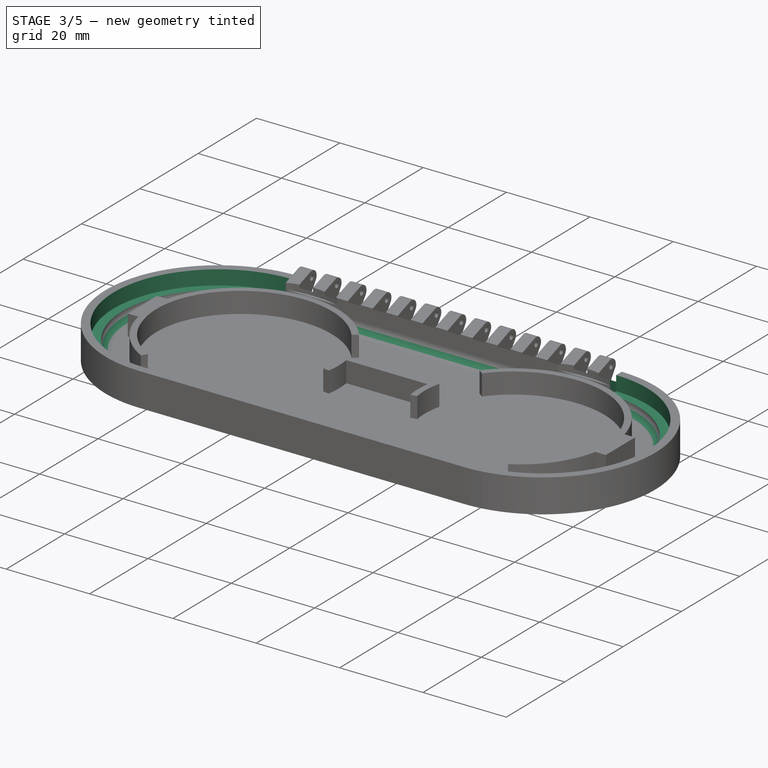
[diagram: stage 3 of 5 — iso view after this stage's code; geometry added in this stage tinted green]
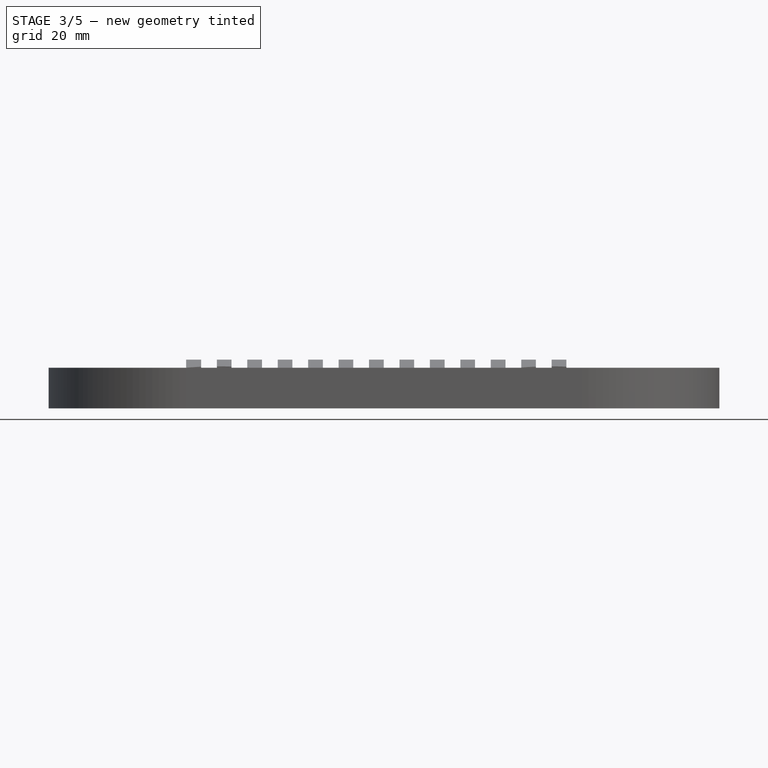
[diagram: stage 3 of 5 — front view after this stage's code; geometry added in this stage tinted green]
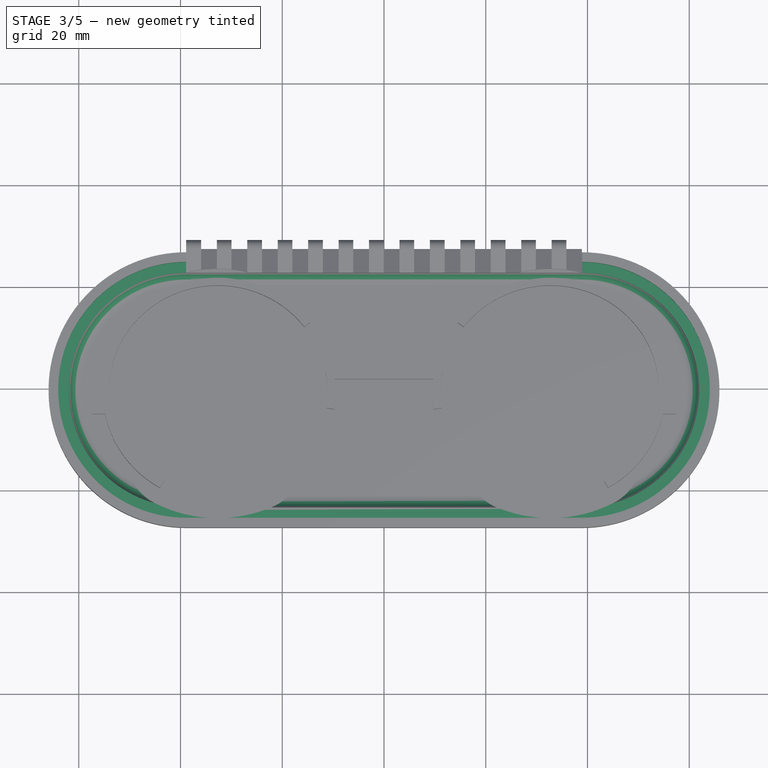
[diagram: stage 3 of 5 — top view after this stage's code; geometry added in this stage tinted green]
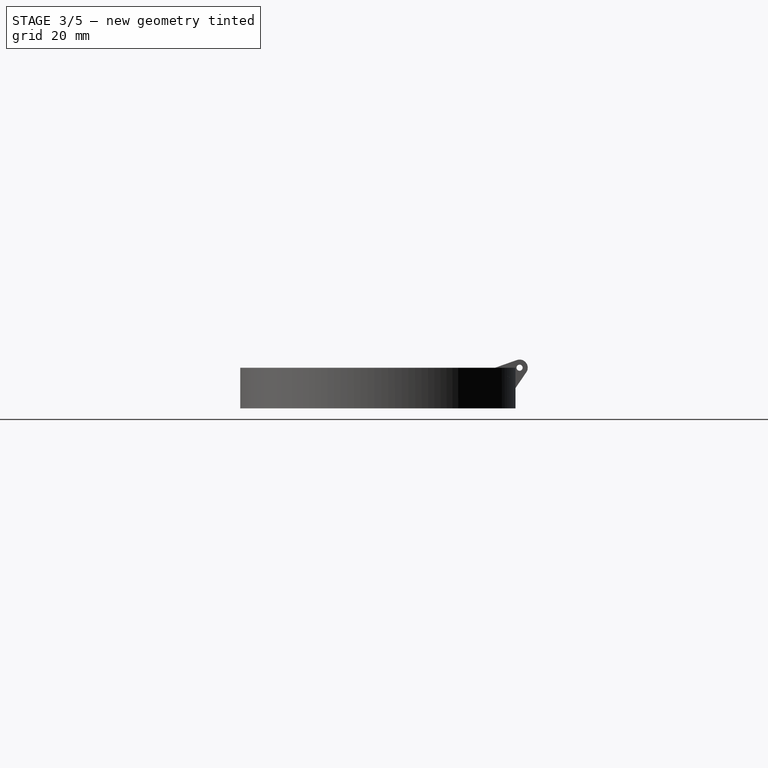
[diagram: stage 3 of 5 — right view after this stage's code; geometry added in this stage tinted green]
FEATURE [Sketcher::SketchObject] Sketch007
  ArcFitTolerance = 1e-06
  AttachmentSupport = -> [Pocket003]
  ExternalGeometry = -> [Sketch002,Pocket003]
  ExternalTypes = [0,0,0]
  FullyConstrained = true
  MakeInternals = false
  MapMode = 5
  Placement = pos=(0,0,1) rot=(0,0,1;0rad)
  sketch-geometry (10):
    g0: ArcOfCircle CenterX=-38.8898 CenterY=-0.3 CenterZ=0 NormalX=0 NormalY=0 NormalZ=1 AngleXU=0 Radius=25.15 StartAngle=1.5708 EndAngle=4.71239
    g1: ArcOfCircle CenterX=38.8898 CenterY=-0.3 CenterZ=0 NormalX=0 NormalY=0 NormalZ=1 AngleXU=0 Radius=25.15 StartAngle=4.71239 EndAngle=7.85199
    g2: LineSegment StartX=-38.8898 StartY=-25.45 StartZ=0 EndX=38.8898 EndY=-25.45 EndZ=0
    g3: ArcOfCircle CenterX=-38.8898 CenterY=-0.3 CenterZ=0 NormalX=0 NormalY=0 NormalZ=1 AngleXU=0 Radius=23.05 StartAngle=1.5708 EndAngle=4.71239
    g4: ArcOfCircle CenterX=38.8898 CenterY=-0.3 CenterZ=0 NormalX=0 NormalY=0 NormalZ=1 AngleXU=0 Radius=23.05 StartAngle=4.71239 EndAngle=7.85181
    g5: LineSegment StartX=-38.8898 StartY=-23.35 StartZ=0 EndX=38.8898 EndY=-23.35 EndZ=0
    g6: LineSegment StartX=38.9398 StartY=24.85 StartZ=0 EndX=38.9398 EndY=22.7499 EndZ=0
    g7: LineSegment [constr] StartX=-38.8898 StartY=26.75 StartZ=0 EndX=-38.8898 EndY=24.75 EndZ=0
    g8: LineSegment [constr] StartX=-38.8898 StartY=22.75 StartZ=0 EndX=-38.8898 EndY=24.75 EndZ=0
    g9: LineSegment StartX=-38.8898 StartY=22.75 StartZ=0 EndX=-38.8898 EndY=24.85 EndZ=0
  constraints (28):
    c: Vertical(g0,g0)
    c: Symmetric(g0,g1,g-2)
    c: Coincident(g2,g0)
    c: Coincident(g2,g1)
    c: Horizontal(g2)
    c: Coincident(g-3,g0)
    c: Coincident(g3,g0)
    c: Vertical(g3,g0)
    c: Coincident(g4,g1)
    c: Coincident(g5,g3)
    c: Coincident(g4,g5)
    c: Vertical(g4,g1)
    c: Coincident(g7,g-4)
    c: Coincident(g8,g-3)
    c: Coincident(g8,g7)
    c: Equal(g8,g7)
    c: Parallel(g7,g8)
    c: Coincident(g9,g8)
    c: PointOnObject(g9,g7)
    c: DistanceY(g7,g9) = 0.1
    c: Coincident(g9,g0)
    c: Coincident(g3,g8)
    c: Coincident(g6,g1)
    c: Coincident(g6,g4)
    c: Equal(g3,g4)
    c: Equal(g1,g0)
    c: PointOnObject(g1,g-5)
    c: PointOnObject(g4,g-5)
FEATURE [PartDesign::Pocket] Pocket  label="Lip"
  BaseFeature = -> Pocket003
  Direction = (0,0,-1)
  Length = 3.5
  Length2 = 5
  Profile = -> Sketch007
  ReferenceAxis = -> Sketch007 [N_Axis]
  Refine = true
  Suppressed = false
  Type = 0
FEATURE [Sketcher::SketchObject] Sketch011
  ArcFitTolerance = 1e-06
  AttachmentSupport = -> [Pocket]
  ExternalGeometry = -> [Sketch,Sketch007,Sketch001]
  ExternalTypes = [0,0,0,0,0]
  FullyConstrained = true
  MakeInternals = false
  MapMode = 5
  Placement = pos=(0,0,-5) rot=(0,0,1;0rad)
  sketch-geometry (25):
    g0: LineSegment [constr] StartX=-32.7 StartY=-21.6 StartZ=0 EndX=-32.7 EndY=-25.45 EndZ=0
    g1: Ellipse [constr] CenterX=-32.7 CenterY=0 CenterZ=0 NormalX=0 NormalY=0 NormalZ=1 MajorRadius=22.5998 MinorRadius=21.6 AngleXU=0
    g2: LineSegment [constr] StartX=-10.1002 StartY=-1.1e-15 StartZ=0 EndX=-55.2998 EndY=1.1e-15 EndZ=0
    g3: LineSegment [constr] StartX=-32.7 StartY=21.6 StartZ=0 EndX=-32.7 EndY=-21.6 EndZ=0
    g4: GeomPoint [constr] X=-26.0525 Y=-3e-16 Z=0
    g5: GeomPoint [constr] X=-39.3475 Y=3e-16 Z=0
    g6: LineSegment [constr] StartX=-10.1002 StartY=-1.1e-15 StartZ=0 EndX=-6.25024 EndY=-1.1e-15 EndZ=0
    g7: ArcOfEllipse CenterX=-32.7 CenterY=0 CenterZ=0 NormalX=0 NormalY=0 NormalZ=1 MajorRadius=26.4498 MinorRadius=25.45 AngleXU=-1e-16 StartAngle=4.22773 EndAngle=5.12147
    g8: LineSegment [constr] StartX=-6.25024 StartY=-3.1e-15 StartZ=0 EndX=-59.1498 EndY=3.1e-15 EndZ=0
    g9: LineSegment [constr] StartX=-32.7 StartY=25.45 StartZ=0 EndX=-32.7 EndY=-25.45 EndZ=0
    g10: GeomPoint [constr] X=-25.4967 Y=-8e-16 Z=0
    g11: GeomPoint [constr] X=-39.9033 Y=8e-16 Z=0
    g12: ArcOfEllipse CenterX=32.7 CenterY=0 CenterZ=0 NormalX=0 NormalY=0 NormalZ=1 MajorRadius=26.4498 MinorRadius=25.45 AngleXU=-3.14159 StartAngle=1.16171 EndAngle=2.05545
    g13: LineSegment [constr] StartX=6.25024 StartY=-1.1e-15 StartZ=0 EndX=59.1498 EndY=1.1e-15 EndZ=0
    g14: LineSegment [constr] StartX=32.7 StartY=-25.45 StartZ=0 EndX=32.7 EndY=25.45 EndZ=0
    g15: GeomPoint [constr] X=25.4967 Y=-3e-16 Z=0
    g16: GeomPoint [constr] X=39.9033 Y=3e-16 Z=0
    g17: ArcOfCircle CenterX=-40.5036 CenterY=-13.5986 CenterZ=0 NormalX=0 NormalY=0 NormalZ=1 AngleXU=0 Radius=10 StartAngle=3.39798 EndAngle=4.24344
    g18: ArcOfCircle CenterX=-26.0291 CenterY=-14.1208 CenterZ=0 NormalX=0 NormalY=0 NormalZ=1 AngleXU=0 Radius=10 StartAngle=5.1076 EndAngle=8.70452
    g19: ArcOfCircle CenterX=26.0291 CenterY=-14.1208 CenterZ=0 NormalX=0 NormalY=0 NormalZ=1 AngleXU=0 Radius=10 StartAngle=0.720262 EndAngle=4.31718
    g20: ArcOfCircle CenterX=40.5036 CenterY=-13.5986 CenterZ=0 NormalX=0 NormalY=0 NormalZ=1 AngleXU=0 Radius=10 StartAngle=5.18134 EndAngle=6.0268
    g21: LineSegment StartX=-50.1767 StartY=-16.1345 StartZ=0 EndX=-44.0543 EndY=-19.5005 EndZ=0
    g22: LineSegment StartX=-44.0543 StartY=-19.5005 StartZ=0 EndX=-33.5454 EndY=-7.52502 EndZ=0
    g23: LineSegment StartX=33.5454 StartY=-7.52502 StartZ=0 EndX=44.0543 EndY=-19.5005 EndZ=0
    g24: LineSegment StartX=50.1767 StartY=-16.1345 StartZ=0 EndX=44.0543 EndY=-19.5005 EndZ=0
  constraints (40):
    c: Vertical(g0)
    c: InternalAlignment(g2-g5 -> g1) x4
    c: Vertical(g3)
    c: Equal(g1,g-3)
    c: Coincident(g6,g2)
    c: Equal(g6,g0)
    c: Coincident(g-3,g1)
    c: Horizontal(g6)
    c: Coincident(g0,g3)
    c: InternalAlignment(g8-g11 -> g7) x4
    c: Coincident(g7,g1)
    c: Coincident(g9,g0)
    c: Vertical(g6,g8)
    c: InternalAlignment(g13-g16 -> g12) x4
    c: Symmetric(g12,g1,g-2)
    c: Symmetric(g13,g6,g-2)
    c: Horizontal(g12,g7)
    c: Horizontal(g7,g12)
    c: PointOnObject(g0,g-5)
    c: PointOnObject(g7,g-6)
    c: PointOnObject(g7,g-4)
    c: Tangent(g7,g17) = -1.5708
    c: Radius(g17) = 10
    c: Tangent(g18,g7) = -1.5708
    c: Equal(g17,g18)
    c: Horizontal(g0,g14)
    c: Tangent(g19,g12) = -1.5708
    c: Tangent(g20,g12) = -1.5708
    c: Equal(g17,g20)
    c: Horizontal(g20,g17)
    c: Equal(g18,g19)
    c: Horizontal(g18,g19)
    c: Coincident(g21,g17)
    c: Tangent(g21,g-7) = -1.5708
    c: Coincident(g22,g21)
    c: Tangent(g22,g18) = 1.5708
    c: Coincident(g23,g19)
    c: Coincident(g24,g20)
    c: Coincident(g24,g23)
    c: Symmetric(g23,g21,g-2)
FEATURE [PartDesign::AdditivePipe] AdditivePipe002  label="Inner case rounding"
  AuxilleryCurvelinear = true
  AuxillerySpineTangent = false
  BaseFeature = -> Pocket
  Binormal = (0,0,0)
  Mode = 0
  Profile = -> Sketch010
  Refine = true
  Spine = -> Sketch002 [Edge3,Edge2,Edge1,Edge4]
  SpineTangent = false
  Suppressed = false
  Transformation = 0
  Transition = 0
FEATURE [PartDesign::Pocket] Pocket006  label="Clearance for bottom edge of bottom frame holder"
  BaseFeature = -> AdditivePipe002
  Direction = (0,0,-1)
  Length = 5
  Length2 = 5
  Profile = -> Sketch011
  ReferenceAxis = -> Sketch011 [N_Axis]
  Refine = true
  Reversed = true
  Suppressed = false
  Type = 1
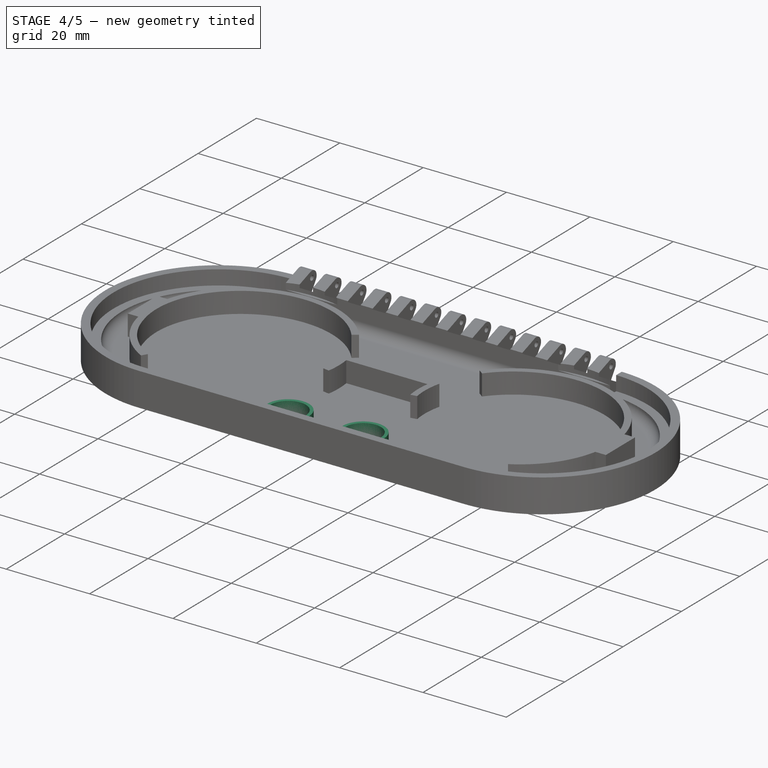
[diagram: stage 4 of 5 — iso view after this stage's code; geometry added in this stage tinted green]
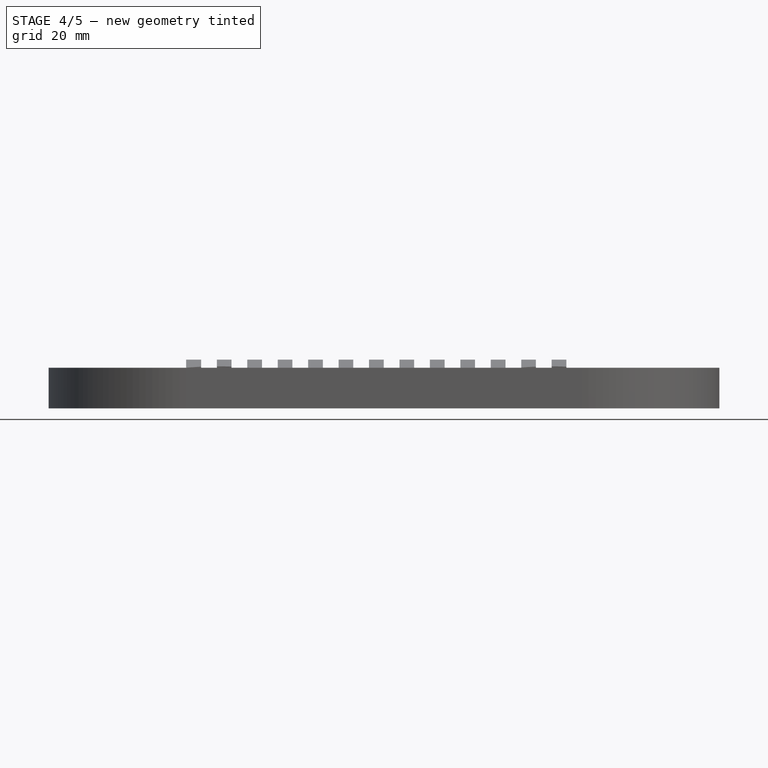
[diagram: stage 4 of 5 — front view after this stage's code; geometry added in this stage tinted green]
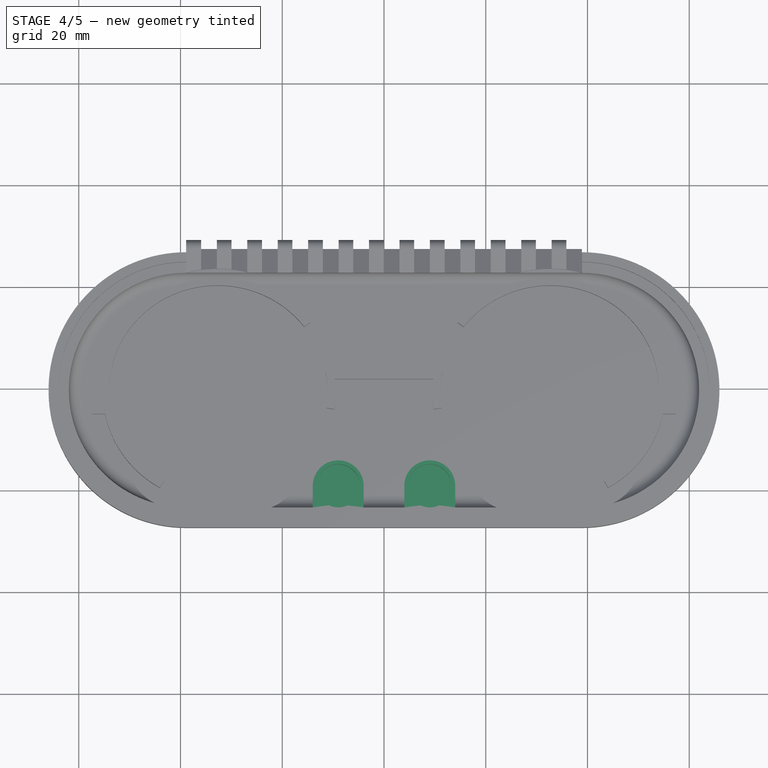
[diagram: stage 4 of 5 — top view after this stage's code; geometry added in this stage tinted green]
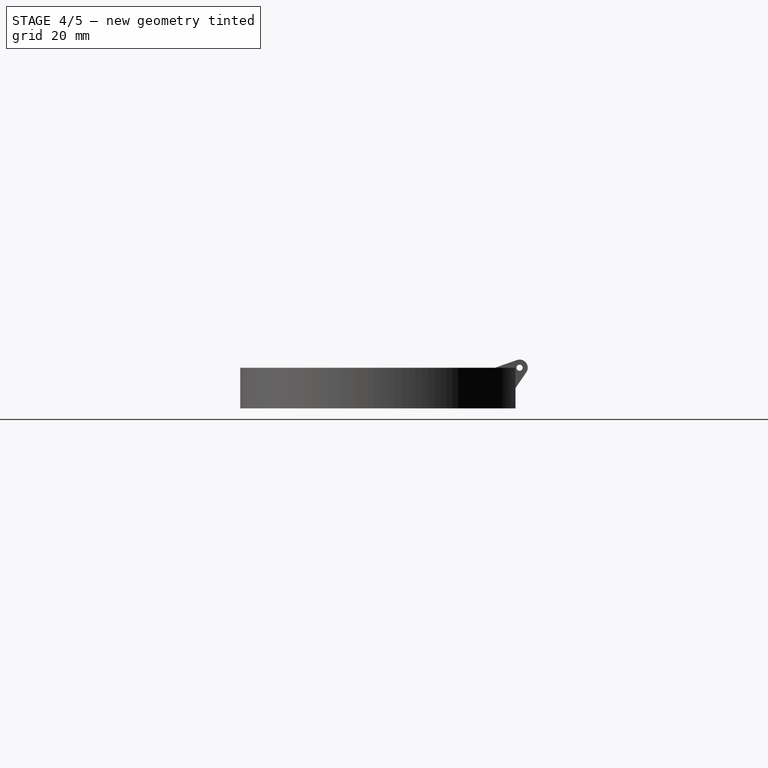
[diagram: stage 4 of 5 — right view after this stage's code; geometry added in this stage tinted green]
FEATURE [Sketcher::SketchObject] Sketch008
  ArcFitTolerance = 1e-06
  AttachmentOffset = pos=(0,0,-0.1) rot=(0,0,1;0rad)
  AttachmentSupport = -> [Pocket006]
  ExternalGeometry = -> [Sketch002]
  ExternalTypes = [0,0]
  FullyConstrained = true
  MakeInternals = false
  MapMode = 5
  Placement = pos=(0,0,-2.6) rot=(0,0,1;0rad)
  sketch-geometry (5):
    g0: Circle CenterX=-9 CenterY=-19.1 CenterZ=0 NormalX=0 NormalY=0 NormalZ=1 AngleXU=0 Radius=4.25
    g1: ArcOfCircle CenterX=-9 CenterY=-19.1 CenterZ=0 NormalX=0 NormalY=0 NormalZ=1 AngleXU=0 Radius=5 StartAngle=3e-16 EndAngle=3.14159
    g2: LineSegment StartX=-14 StartY=-19.1 StartZ=0 EndX=-14 EndY=-23.35 EndZ=0
    g3: LineSegment StartX=-4 StartY=-19.1 StartZ=0 EndX=-4 EndY=-23.35 EndZ=0
    g4: LineSegment StartX=-14 StartY=-23.35 StartZ=0 EndX=-4 EndY=-23.35 EndZ=0
  constraints (15):
    c: Diameter(g0) = 8.5
    c: Tangent(g-3,g0)
    c: Coincident(g1,g0)
    c: Coincident(g2,g1)
    c: PointOnObject(g2,g-3)
    c: Vertical(g2)
    c: Coincident(g3,g1)
    c: PointOnObject(g3,g-3)
    c: Vertical(g3)
    c: Horizontal(g0,g1)
    c: Horizontal(g0,g1)
    c: Distance(g3,g2) = 10
    c: Coincident(g4,g2)
    c: Coincident(g3,g4)
    c: Distance(g0,g-2) = 9
FEATURE [PartDesign::Pad] Pad004  label="Magnet post #1"
  BaseFeature = -> Pocket006
  Direction = (0,0,1)
  Length = 10
  Length2 = 10
  Profile = -> Sketch008 [Edge4,Edge3,Edge2,Edge5]
  ReferenceAxis = -> Sketch008 [N_Axis]
  Refine = true
  Suppressed = false
  Type = 3
  UpToFace = -> Pocket006 [Face135]
FEATURE [PartDesign::Mirrored] Mirrored  label="Magnet post #2"
  BaseFeature = -> Pad004
  MirrorPlane = -> YZ_Plane
  Originals = -> [Pad004]
  Refine = true
  Suppressed = false
  TransformMode = 0
FEATURE [PartDesign::Pocket] Pocket004  label="8x3 neodymium magnet holder #1"
  BaseFeature = -> Mirrored
  Direction = (0,0,-1)
  Length = 3.5
  Length2 = 5
  Profile = -> Sketch008 [Edge1]
  ReferenceAxis = -> Sketch008 [N_Axis]
  Refine = true
  Suppressed = false
  Type = 0
FEATURE [PartDesign::Mirrored] Mirrored001  label="8x3 neodymium magnet holder #2"
  BaseFeature = -> Pocket004
  MirrorPlane = -> YZ_Plane
  Originals = -> [Pocket004]
  Refine = true
  Suppressed = false
  TransformMode = 0
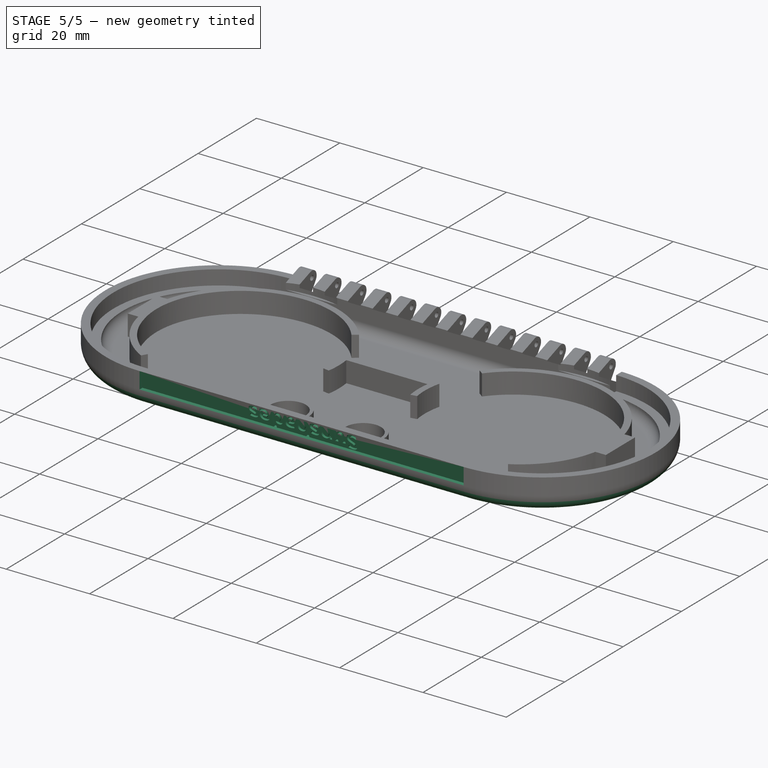
[diagram: stage 5 of 5 — iso view after this stage's code; geometry added in this stage tinted green]
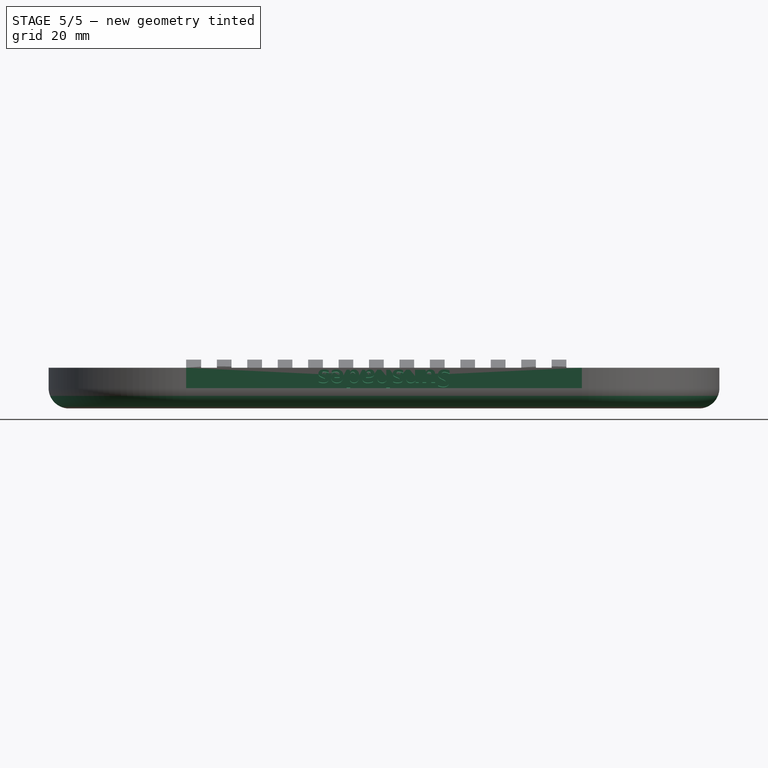
[diagram: stage 5 of 5 — front view after this stage's code; geometry added in this stage tinted green]
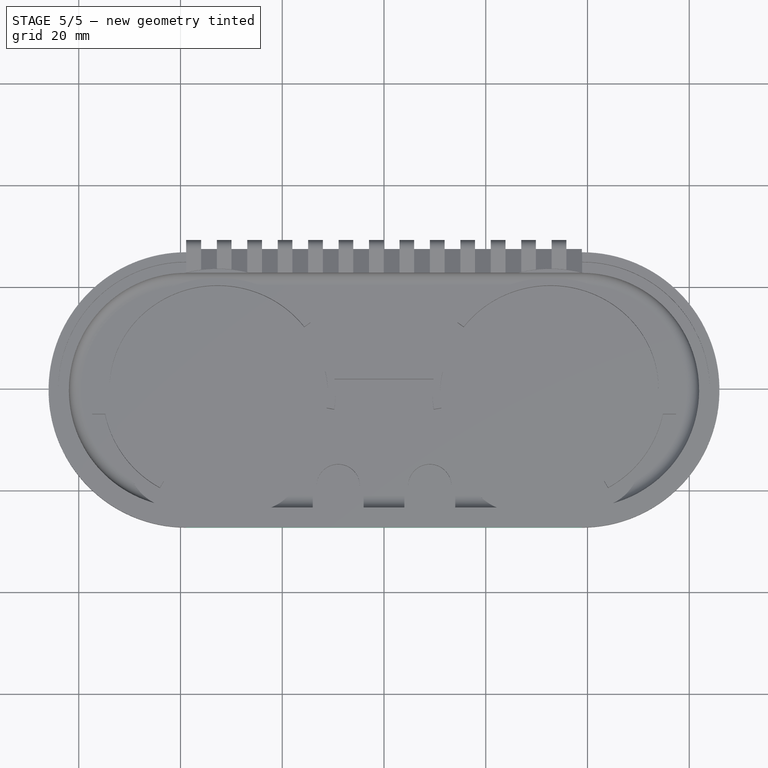
[diagram: stage 5 of 5 — top view after this stage's code; geometry added in this stage tinted green]
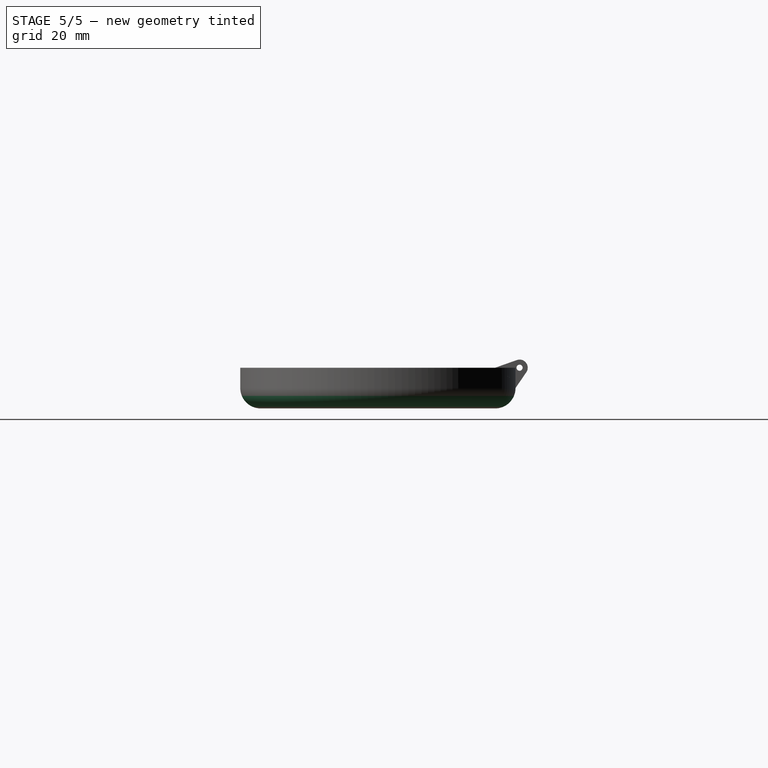
[diagram: stage 5 of 5 — right view after this stage's code; geometry added in this stage tinted green]
FEATURE [Sketcher::SketchObject] Sketch009
  ArcFitTolerance = 1e-06
  AttachmentSupport = -> [YZ_Plane]
  ExternalGeometry = -> [Sketch004,Mirrored001]
  ExternalTypes = [0,0]
  FullyConstrained = true
  MakeInternals = false
  MapMode = 5
  Placement = pos=(0,0,0) rot=(0.57735,0.57735,0.57735;2.0944rad)
  sketch-geometry (3):
    g0: ArcOfCircle CenterX=-23.35 CenterY=-3 CenterZ=0 NormalX=0 NormalY=0 NormalZ=1 AngleXU=0 Radius=4 StartAngle=3.14159 EndAngle=4.71239
    g1: LineSegment StartX=-27.35 StartY=-3 StartZ=0 EndX=-27.35 EndY=-7 EndZ=0
    g2: LineSegment StartX=-27.35 StartY=-7 StartZ=0 EndX=-23.35 EndY=-7 EndZ=0
  constraints (8):
    c: Vertical(g0,g0)
    c: Coincident(g1,g0)
    c: Coincident(g2,g1)
    c: Tangent(g2,g0) = -1.5708
    c: Horizontal(g0,g-3)
    c: Horizontal(g0,g0)
    c: Vertical(g1)
    c: Coincident(g1,g-4)
FEATURE [PartDesign::SubtractivePipe] SubtractivePipe  label="Outer case rounding"
  AuxilleryCurvelinear = true
  AuxillerySpineTangent = false
  BaseFeature = -> Mirrored001
  Binormal = (0,0,0)
  Mode = 0
  Profile = -> Sketch009
  Refine = true
  Spine = -> Sketch002 [Edge8,Edge5,Edge6,Edge7]
  SpineTangent = false
  Suppressed = false
  Transformation = 0
  Transition = 1
FEATURE [Sketcher::SketchObject] Sketch013
  ArcFitTolerance = 1e-06
  AttachmentSupport = -> [YZ_Plane]
  ExternalGeometry = -> [Sketch009,Sketch007]
  ExternalTypes = [0,0]
  FullyConstrained = true
  MakeInternals = false
  MapMode = 5
  Placement = pos=(0,0,0) rot=(0.57735,0.57735,0.57735;2.0944rad)
  sketch-geometry (3):
    g0: LineSegment StartX=-27.35 StartY=-3 StartZ=0 EndX=-26.35 EndY=-3 EndZ=0
    g1: LineSegment StartX=-26.35 StartY=-3 StartZ=0 EndX=-27.35 EndY=1 EndZ=0
    g2: LineSegment StartX=-27.35 StartY=1 StartZ=0 EndX=-27.35 EndY=-3 EndZ=0
  constraints (8):
    c: Coincident(g-3,g0)
    c: Horizontal(g0)
    c: Coincident(g0,g1)
    c: Coincident(g1,g2)
    c: Coincident(g2,g0)
    c: Vertical(g2)
    c: Horizontal(g1,g-4)
    c: DistanceX(g0,g0) = 1
FEATURE [PartDesign::SubtractivePipe] SubtractivePipe001  label="Thumb notch"
  AuxilleryCurvelinear = true
  AuxillerySpineTangent = false
  BaseFeature = -> SubtractivePipe
  Binormal = (0,0,0)
  Mode = 0
  Profile = -> Sketch013
  Refine = true
  Spine = -> Sketch002 [Edge8]
  SpineTangent = false
  Suppressed = false
  Transformation = 0
  Transition = 0
FEATURE [Part::Part2DObjectPython] ShapeString  # Draft 2D object (typed FeaturePython)
  AttachmentOffset = pos=(0,7.2,0) rot=(0,0,1;3.14159rad)
  AttachmentSupport = -> [SubtractivePipe001]
  FontFile = <path>
  Fuse = false
  Justification = 7
  JustificationReference = 0
  KeepLeftMargin = false
  MakeFace = true
  MapMode = 5
  ObliqueAngle = 0
  Placement = pos=(0,-27.2521,0.608555) rot=(0,-0.788205,0.615412;3.14159rad)
  ScaleToSize = true
  Size = 3.5
  String = Sunshades
  Tracking = 0
FEATURE [PartDesign::Pocket] Pocket009  label="Front marking"
  BaseFeature = -> SubtractivePipe001
  Direction = (0,0.97,0.24)
  Length = 0.5
  Length2 = 5
  Profile = -> ShapeString
  ReferenceAxis = -> ShapeString [N_Axis]
  Refine = true
  Suppressed = false
  Type = 0
FEATURE [PartDesign::Body] Body  label="Clip-on shades case top"
  AllowCompound = false
  Group = -> [Sketch,Sketch001,Sketch002,Pad,Pad001,Pad005,Pad002,Sketch004,AdditivePipe,Sketch012,Sketch005,Plane,Sketch006,Pocket008,Pocket003,Sketch007,Pocket,Sketch010,Sketch008,AdditivePipe002,Sketch011,Pocket006,Pad004,Mirrored,Pocket004,Mirrored001,Sketch009,SubtractivePipe,Sketch013,SubtractivePipe001,ShapeString,Pocket009]
  Origin = -> Origin
  Tip = -> Pocket009
note: 1 file-system path scrubbed to <path> (originals preserved in the JSON sidecar)
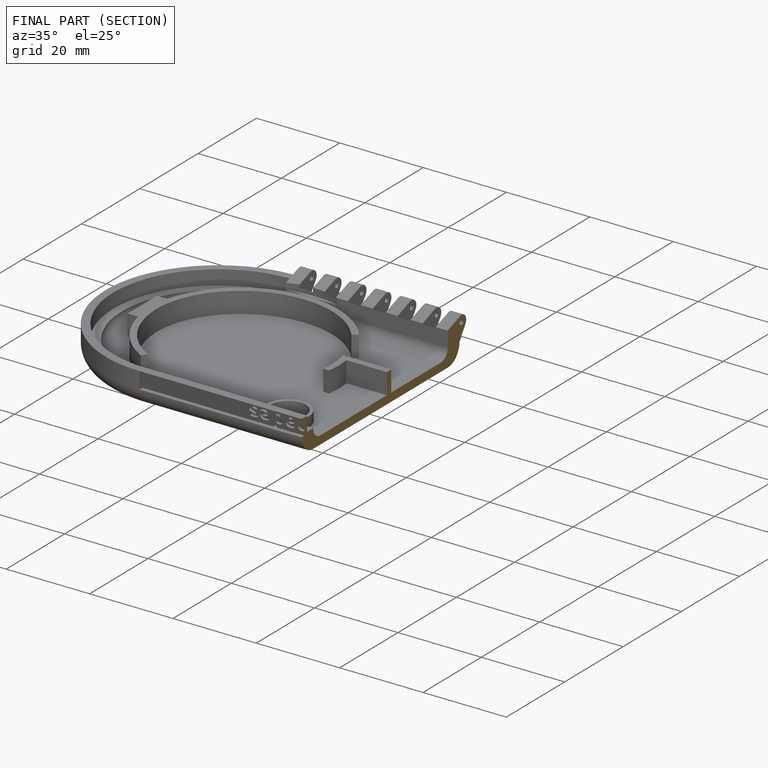
[diagram: finished part — half-section view (interior)]
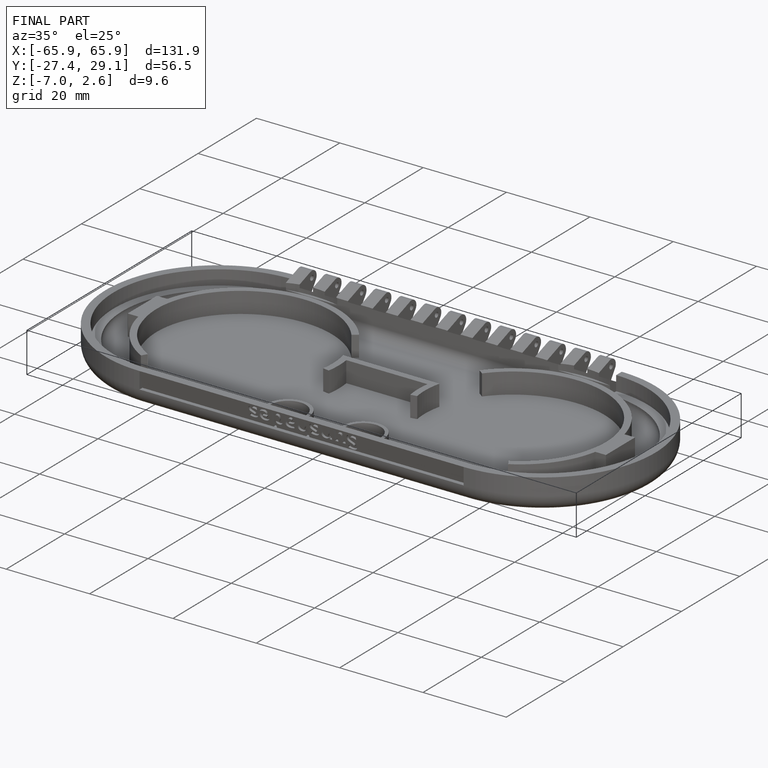
[diagram: finished part — iso view with bounding-box wireframe]
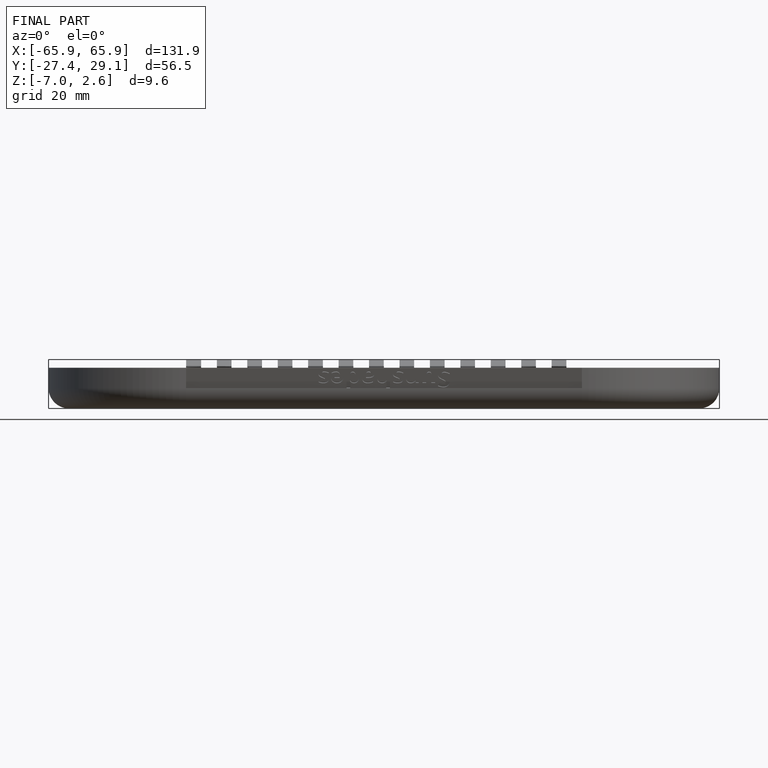
[diagram: finished part — front view with bounding-box wireframe]
